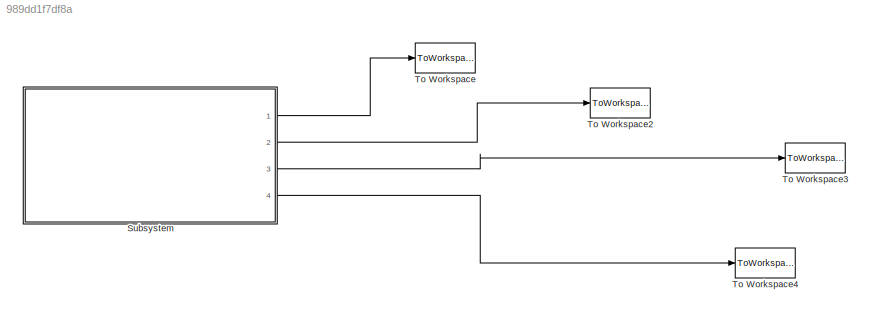
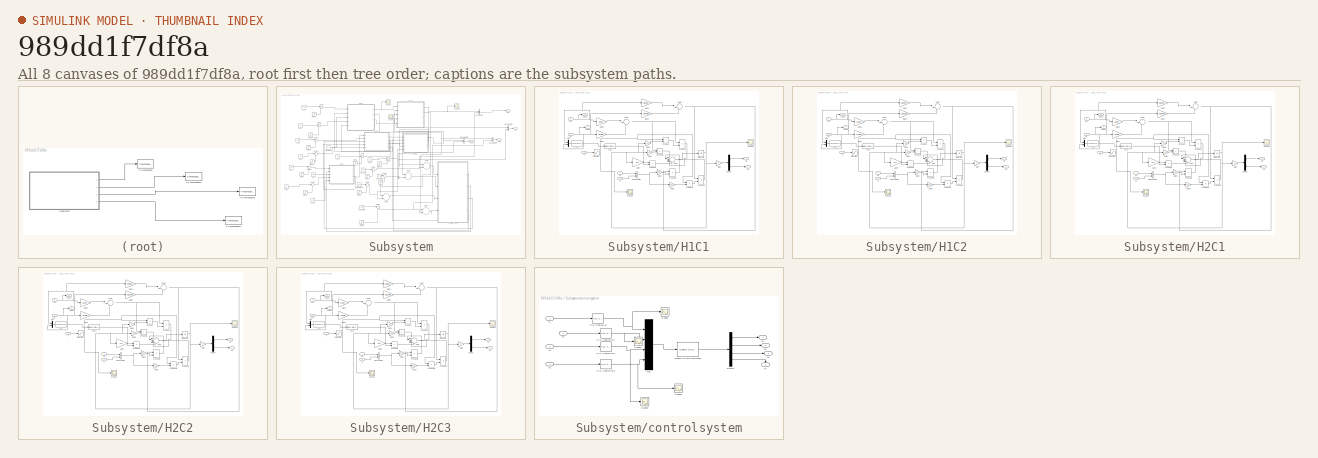
[diagram: thumbnail index - all 8 canvases of the model, root first then tree order]
MODEL slx_989dd1f7df8a
KIND model
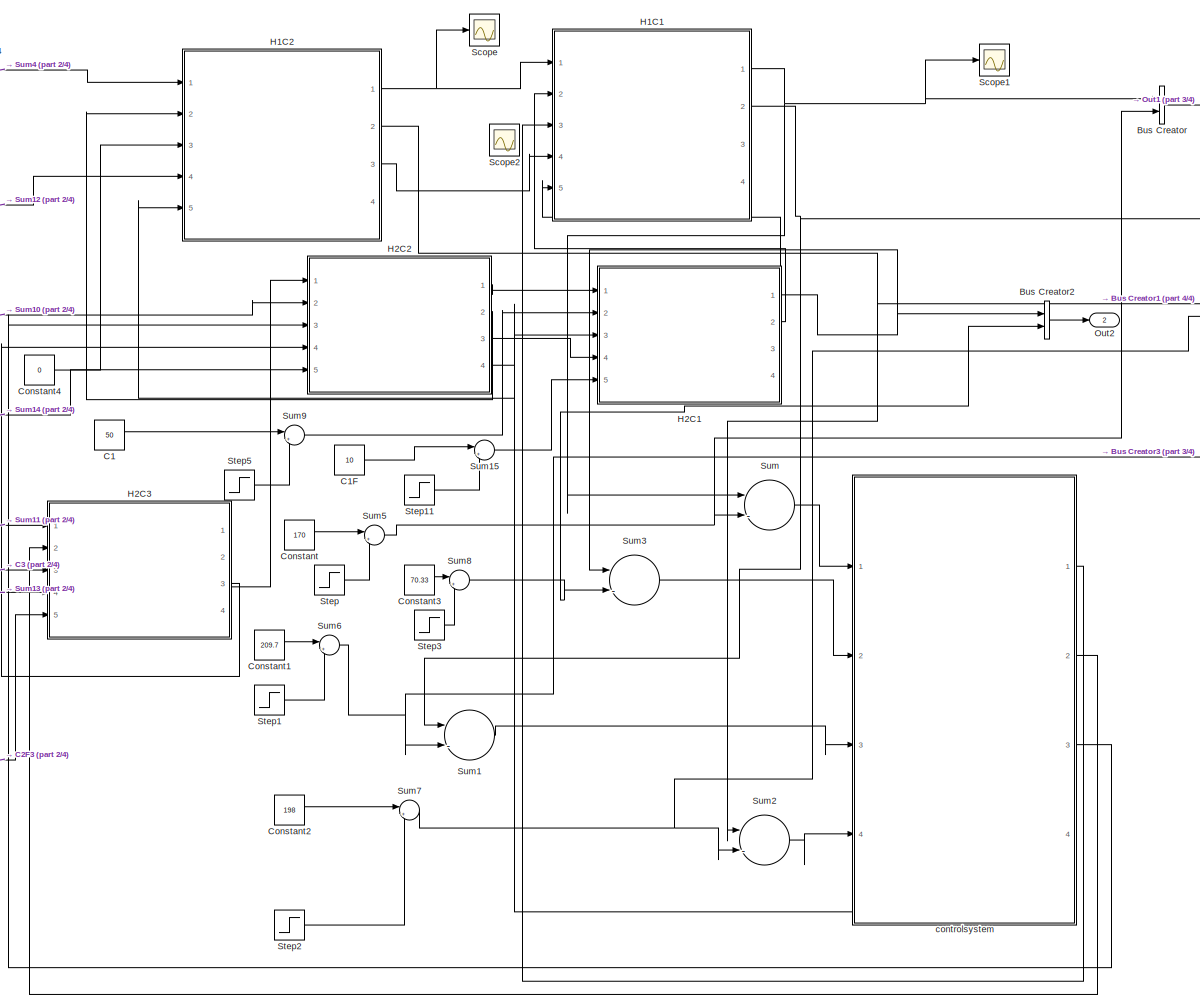
[diagram: Subsystem - part 1/4, center side, full height]
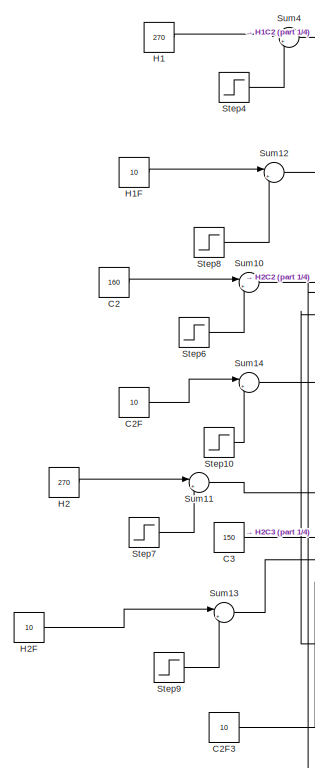
[diagram: Subsystem - part 2/4, left side, full height]
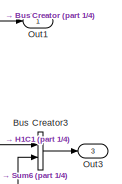
[diagram: Subsystem - part 3/4, top right region]
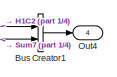
[diagram: Subsystem - part 4/4, top right region]
BLOCK [SubSystem] Subsystem
  Ports = [0, 4]
  RequestExecContextInheritance = off
BLOCK [BusCreator] Subsystem/Bus Creator
  DisplayOption = bar
  Inputs = 2
  Ports = [2, 1]
BLOCK [BusCreator] Subsystem/Bus Creator1
  DisplayOption = bar
  Inputs = 2
  Ports = [2, 1]
BLOCK [BusCreator] Subsystem/Bus Creator2
  DisplayOption = bar
  Inputs = 2
  Ports = [2, 1]
BLOCK [BusCreator] Subsystem/Bus Creator3
  DisplayOption = bar
  Inputs = 2
  Ports = [2, 1]
BLOCK [Constant] Subsystem/C1
  Value = 50
BLOCK [Constant] Subsystem/C1F
  Value = 10
BLOCK [Constant] Subsystem/C2
  Value = 160
BLOCK [Constant] Subsystem/C2F
  Value = 10
BLOCK [Constant] Subsystem/C2F3
  Value = 10
BLOCK [Constant] Subsystem/C3
  Value = 150
BLOCK [Constant] Subsystem/Constant
  Value = 170
BLOCK [Constant] Subsystem/Constant1
  Value = 209.7
BLOCK [Constant] Subsystem/Constant2
  Value = 198
BLOCK [Constant] Subsystem/Constant3
  Value = 70.33
BLOCK [Constant] Subsystem/Constant4
  Value = 0
BLOCK [Constant] Subsystem/H1
  Value = 270
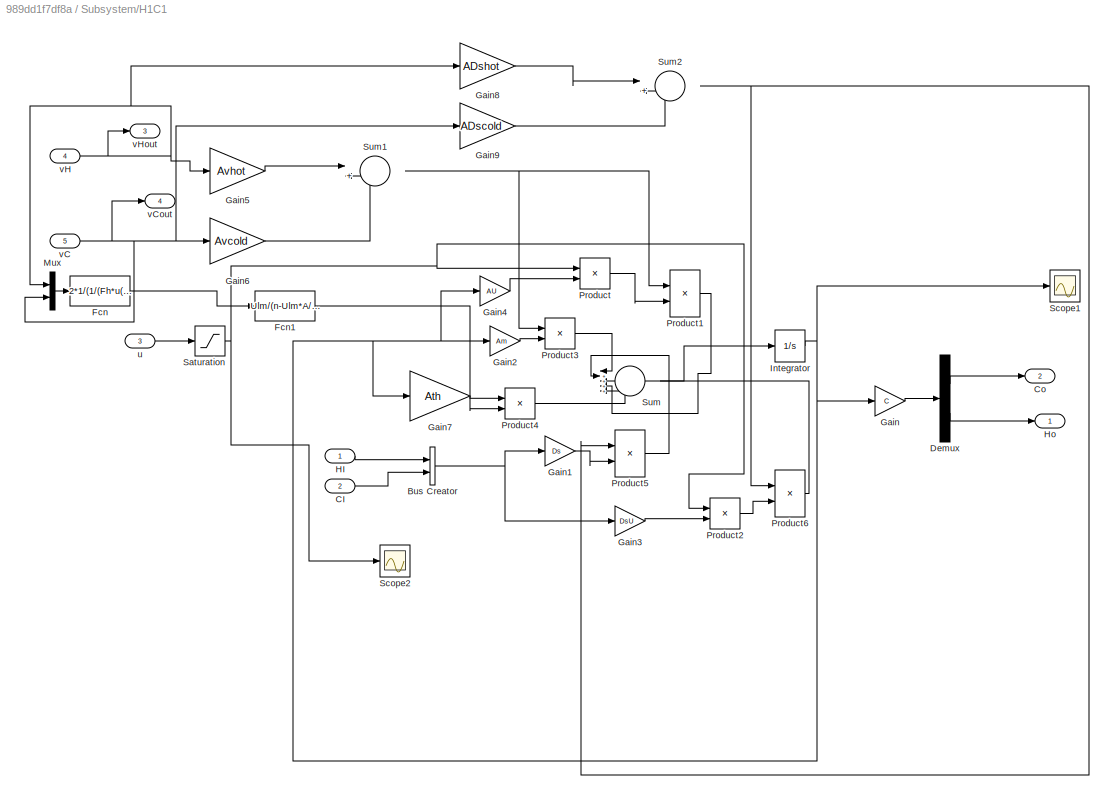
BLOCK [SubSystem] Subsystem/H1C1
  Ports = [5, 4]
  RequestExecContextInheritance = off
BLOCK [BusCreator] Subsystem/H1C1/Bus Creator
  DisplayOption = bar
  Inputs = 2
  Ports = [2, 1]
BLOCK [Inport] Subsystem/H1C1/CI
  IconDisplay = Port number
  Port = 2
BLOCK [Outport] Subsystem/H1C1/Co
  IconDisplay = Port number
  Port = 2
BLOCK [Demux] Subsystem/H1C1/Demux
  DisplayOption = bar
  Outputs = 2
  Ports = [1, 2]
BLOCK [Fcn] Subsystem/H1C1/Fcn
  Expr = 2*1/(1/(Fh*u(1))+1/(Fc*u(2)));
BLOCK [Fcn] Subsystem/H1C1/Fcn1
  Expr = Ulm/(n-Ulm*A/u)*n
BLOCK [Gain] Subsystem/H1C1/Gain
  Gain = C
  Multiplication = Matrix(K*u)
  OutDataTypeStr = Inherit: Inherit via internal rule
  ParamDataTypeStr = Inherit: Inherit via internal rule
  SaturateOnIntegerOverflow = off
BLOCK [Gain] Subsystem/H1C1/Gain1
  Gain = Ds
  Multiplication = Matrix(K*u)
  OutDataTypeStr = Inherit: Inherit via internal rule
  ParamDataTypeStr = Inherit: Inherit via internal rule
  SaturateOnIntegerOverflow = off
BLOCK [Gain] Subsystem/H1C1/Gain2
  Gain = Am
  Multiplication = Matrix(K*u)
  OutDataTypeStr = Inherit: Inherit via internal rule
  ParamDataTypeStr = Inherit: Inherit via internal rule
  SaturateOnIntegerOverflow = off
BLOCK [Gain] Subsystem/H1C1/Gain3
  Gain = DsU
  Multiplication = Matrix(K*u)
  OutDataTypeStr = Inherit: Inherit via internal rule
  ParamDataTypeStr = Inherit: Inherit via internal rule
  SaturateOnIntegerOverflow = off
BLOCK [Gain] Subsystem/H1C1/Gain4
  Gain = AU
  Multiplication = Matrix(K*u)
  OutDataTypeStr = Inherit: Inherit via internal rule
  ParamDataTypeStr = Inherit: Inherit via internal rule
  SaturateOnIntegerOverflow = off
BLOCK [Gain] Subsystem/H1C1/Gain5
  Gain = Avhot
  OutDataTypeStr = Inherit: Inherit via internal rule
  ParamDataTypeStr = Inherit: Inherit via internal rule
  SaturateOnIntegerOverflow = off
BLOCK [Gain] Subsystem/H1C1/Gain6
  Gain = Avcold
  OutDataTypeStr = Inherit: Inherit via internal rule
  ParamDataTypeStr = Inherit: Inherit via internal rule
  SaturateOnIntegerOverflow = off
BLOCK [Gain] Subsystem/H1C1/Gain7
  Gain = Ath
  Multiplication = Matrix(K*u)
  OutDataTypeStr = Inherit: Inherit via internal rule
  ParamDataTypeStr = Inherit: Inherit via internal rule
  SaturateOnIntegerOverflow = off
BLOCK [Gain] Subsystem/H1C1/Gain8
  Gain = ADshot
  OutDataTypeStr = Inherit: Inherit via internal rule
  ParamDataTypeStr = Inherit: Inherit via internal rule
  SaturateOnIntegerOverflow = off
BLOCK [Gain] Subsystem/H1C1/Gain9
  Gain = ADscold
  OutDataTypeStr = Inherit: Inherit via internal rule
  ParamDataTypeStr = Inherit: Inherit via internal rule
  SaturateOnIntegerOverflow = off
BLOCK [Inport] Subsystem/H1C1/HI
  IconDisplay = Port number
BLOCK [Outport] Subsystem/H1C1/Ho
  IconDisplay = Port number
BLOCK [Integrator] Subsystem/H1C1/Integrator
  InitialCondition = initT
  Ports = [1, 1]
BLOCK [Mux] Subsystem/H1C1/Mux
  DisplayOption = bar
  Inputs = 2
  Ports = [2, 1]
BLOCK [Product] Subsystem/H1C1/Product
  InputSameDT = off
  OutDataTypeStr = Inherit: Inherit via internal rule
  Ports = [2, 1]
  RndMeth = Floor
  SaturateOnIntegerOverflow = off
BLOCK [Product] Subsystem/H1C1/Product1
  InputSameDT = off
  Multiplication = Matrix(*)
  OutDataTypeStr = Inherit: Inherit via internal rule
  Ports = [2, 1]
  RndMeth = Floor
  SaturateOnIntegerOverflow = off
BLOCK [Product] Subsystem/H1C1/Product2
  InputSameDT = off
  OutDataTypeStr = Inherit: Inherit via internal rule
  Ports = [2, 1]
  RndMeth = Floor
  SaturateOnIntegerOverflow = off
BLOCK [Product] Subsystem/H1C1/Product3
  InputSameDT = off
  Multiplication = Matrix(*)
  OutDataTypeStr = Inherit: Inherit via internal rule
  Ports = [2, 1]
  RndMeth = Floor
  SaturateOnIntegerOverflow = off
BLOCK [Product] Subsystem/H1C1/Product4
  InputSameDT = off
  OutDataTypeStr = Inherit: Inherit via internal rule
  Ports = [2, 1]
  RndMeth = Floor
  SaturateOnIntegerOverflow = off
BLOCK [Product] Subsystem/H1C1/Product5
  InputSameDT = off
  Multiplication = Matrix(*)
  OutDataTypeStr = Inherit: Inherit via internal rule
  Ports = [2, 1]
  RndMeth = Floor
  SaturateOnIntegerOverflow = off
BLOCK [Product] Subsystem/H1C1/Product6
  InputSameDT = off
  Multiplication = Matrix(*)
  OutDataTypeStr = Inherit: Inherit via internal rule
  Ports = [2, 1]
  RndMeth = Floor
  SaturateOnIntegerOverflow = off
BLOCK [Saturate] Subsystem/H1C1/Saturation
  InputPortMap = u0
  LowerLimit = 0
  Ports = [1, 1]
  UpperLimit = 1
BLOCK [Scope] Subsystem/H1C1/Scope1
  Floating = off
  LegendLocations = 0.41857    -0.59079     0.44357      1.3788
  LimitDataPoints = off
  NumInputPorts = 1
  Ports = [1]
  SaveName = ScopeData4
  ShowLegends = on
  YMax = 220
  YMin = 60
BLOCK [Scope] Subsystem/H1C1/Scope2
  Floating = off
  NumInputPorts = 1
  Ports = [1]
  SaveName = ScopeData2
  ShowLegends = off
BLOCK [Sum] Subsystem/H1C1/Sum
  IconShape = round
  InputSameDT = off
  Inputs = |+++++
  OutDataTypeStr = Inherit: Inherit via internal rule
  Ports = [5, 1]
  SaturateOnIntegerOverflow = off
BLOCK [Sum] Subsystem/H1C1/Sum1
  IconShape = round
  InputSameDT = off
  Inputs = |++
  OutDataTypeStr = Inherit: Inherit via internal rule
  Ports = [2, 1]
  SaturateOnIntegerOverflow = off
BLOCK [Sum] Subsystem/H1C1/Sum2
  IconShape = round
  InputSameDT = off
  Inputs = |++
  OutDataTypeStr = Inherit: Inherit via internal rule
  Ports = [2, 1]
  SaturateOnIntegerOverflow = off
BLOCK [Inport] Subsystem/H1C1/u
  IconDisplay = Port number
  Port = 3
BLOCK [Inport] Subsystem/H1C1/vC
  IconDisplay = Port number
  Port = 5
BLOCK [Outport] Subsystem/H1C1/vCout
  IconDisplay = Port number
  Port = 4
BLOCK [Inport] Subsystem/H1C1/vH
  IconDisplay = Port number
  Port = 4
BLOCK [Outport] Subsystem/H1C1/vHout
  IconDisplay = Port number
  Port = 3
BLOCK [SubSystem] Subsystem/H1C2
  Ports = [5, 4]
  RequestExecContextInheritance = off
BLOCK [BusCreator] Subsystem/H1C2/Bus Creator
  DisplayOption = bar
  Inputs = 2
  Ports = [2, 1]
BLOCK [Inport] Subsystem/H1C2/CI
  IconDisplay = Port number
  Port = 2
BLOCK [Outport] Subsystem/H1C2/Co
  IconDisplay = Port number
  Port = 2
BLOCK [Demux] Subsystem/H1C2/Demux
  DisplayOption = bar
  Outputs = 2
  Ports = [1, 2]
BLOCK [Fcn] Subsystem/H1C2/Fcn
  Expr = 2*1/(1/(Fh*u(1))+1/(Fc*u(2)));
BLOCK [Fcn] Subsystem/H1C2/Fcn1
  Expr = Ulm/(n-Ulm*A/u)*n
BLOCK [Gain] Subsystem/H1C2/Gain
  Gain = C
  Multiplication = Matrix(K*u)
  OutDataTypeStr = Inherit: Inherit via internal rule
  ParamDataTypeStr = Inherit: Inherit via internal rule
  SaturateOnIntegerOverflow = off
BLOCK [Gain] Subsystem/H1C2/Gain1
  Gain = Ds
  Multiplication = Matrix(K*u)
  OutDataTypeStr = Inherit: Inherit via internal rule
  ParamDataTypeStr = Inherit: Inherit via internal rule
  SaturateOnIntegerOverflow = off
BLOCK [Gain] Subsystem/H1C2/Gain2
  Gain = Am
  Multiplication = Matrix(K*u)
  OutDataTypeStr = Inherit: Inherit via internal rule
  ParamDataTypeStr = Inherit: Inherit via internal rule
  SaturateOnIntegerOverflow = off
BLOCK [Gain] Subsystem/H1C2/Gain3
  Gain = DsU
  Multiplication = Matrix(K*u)
  OutDataTypeStr = Inherit: Inherit via internal rule
  ParamDataTypeStr = Inherit: Inherit via internal rule
  SaturateOnIntegerOverflow = off
BLOCK [Gain] Subsystem/H1C2/Gain4
  Gain = AU
  Multiplication = Matrix(K*u)
  OutDataTypeStr = Inherit: Inherit via internal rule
  ParamDataTypeStr = Inherit: Inherit via internal rule
  SaturateOnIntegerOverflow = off
BLOCK [Gain] Subsystem/H1C2/Gain5
  Gain = Avhot
  OutDataTypeStr = Inherit: Inherit via internal rule
  ParamDataTypeStr = Inherit: Inherit via internal rule
  SaturateOnIntegerOverflow = off
BLOCK [Gain] Subsystem/H1C2/Gain6
  Gain = Avcold
  OutDataTypeStr = Inherit: Inherit via internal rule
  ParamDataTypeStr = Inherit: Inherit via internal rule
  SaturateOnIntegerOverflow = off
BLOCK [Gain] Subsystem/H1C2/Gain7
  Gain = Ath
  Multiplication = Matrix(K*u)
  OutDataTypeStr = Inherit: Inherit via internal rule
  ParamDataTypeStr = Inherit: Inherit via internal rule
  SaturateOnIntegerOverflow = off
BLOCK [Gain] Subsystem/H1C2/Gain8
  Gain = ADshot
  OutDataTypeStr = Inherit: Inherit via internal rule
  ParamDataTypeStr = Inherit: Inherit via internal rule
  SaturateOnIntegerOverflow = off
BLOCK [Gain] Subsystem/H1C2/Gain9
  Gain = ADscold
  OutDataTypeStr = Inherit: Inherit via internal rule
  ParamDataTypeStr = Inherit: Inherit via internal rule
  SaturateOnIntegerOverflow = off
BLOCK [Inport] Subsystem/H1C2/HI
  IconDisplay = Port number
BLOCK [Outport] Subsystem/H1C2/Ho
  IconDisplay = Port number
BLOCK [Integrator] Subsystem/H1C2/Integrator
  InitialCondition = initT
  Ports = [1, 1]
BLOCK [Mux] Subsystem/H1C2/Mux
  DisplayOption = bar
  Inputs = 2
  Ports = [2, 1]
BLOCK [Product] Subsystem/H1C2/Product
  InputSameDT = off
  OutDataTypeStr = Inherit: Inherit via internal rule
  Ports = [2, 1]
  RndMeth = Floor
  SaturateOnIntegerOverflow = off
BLOCK [Product] Subsystem/H1C2/Product1
  InputSameDT = off
  Multiplication = Matrix(*)
  OutDataTypeStr = Inherit: Inherit via internal rule
  Ports = [2, 1]
  RndMeth = Floor
  SaturateOnIntegerOverflow = off
BLOCK [Product] Subsystem/H1C2/Product2
  InputSameDT = off
  OutDataTypeStr = Inherit: Inherit via internal rule
  Ports = [2, 1]
  RndMeth = Floor
  SaturateOnIntegerOverflow = off
BLOCK [Product] Subsystem/H1C2/Product3
  InputSameDT = off
  Multiplication = Matrix(*)
  OutDataTypeStr = Inherit: Inherit via internal rule
  Ports = [2, 1]
  RndMeth = Floor
  SaturateOnIntegerOverflow = off
BLOCK [Product] Subsystem/H1C2/Product4
  InputSameDT = off
  OutDataTypeStr = Inherit: Inherit via internal rule
  Ports = [2, 1]
  RndMeth = Floor
  SaturateOnIntegerOverflow = off
BLOCK [Product] Subsystem/H1C2/Product5
  InputSameDT = off
  Multiplication = Matrix(*)
  OutDataTypeStr = Inherit: Inherit via internal rule
  Ports = [2, 1]
  RndMeth = Floor
  SaturateOnIntegerOverflow = off
BLOCK [Product] Subsystem/H1C2/Product6
  InputSameDT = off
  Multiplication = Matrix(*)
  OutDataTypeStr = Inherit: Inherit via internal rule
  Ports = [2, 1]
  RndMeth = Floor
  SaturateOnIntegerOverflow = off
BLOCK [Saturate] Subsystem/H1C2/Saturation
  InputPortMap = u0
  LowerLimit = 0
  Ports = [1, 1]
  UpperLimit = 1
BLOCK [Scope] Subsystem/H1C2/Scope1
  Floating = off
  LegendLocations = 0.41857    -0.59079     0.44357      1.3788
  LimitDataPoints = off
  NumInputPorts = 1
  Ports = [1]
  SaveName = ScopeData4
  ShowLegends = on
  YMax = 220
  YMin = 60
BLOCK [Scope] Subsystem/H1C2/Scope2
  Floating = off
  NumInputPorts = 1
  Ports = [1]
  SaveName = ScopeData2
  ShowLegends = off
BLOCK [Sum] Subsystem/H1C2/Sum
  IconShape = round
  InputSameDT = off
  Inputs = |+++++
  OutDataTypeStr = Inherit: Inherit via internal rule
  Ports = [5, 1]
  SaturateOnIntegerOverflow = off
BLOCK [Sum] Subsystem/H1C2/Sum1
  IconShape = round
  InputSameDT = off
  Inputs = |++
  OutDataTypeStr = Inherit: Inherit via internal rule
  Ports = [2, 1]
  SaturateOnIntegerOverflow = off
BLOCK [Sum] Subsystem/H1C2/Sum2
  IconShape = round
  InputSameDT = off
  Inputs = |++
  OutDataTypeStr = Inherit: Inherit via internal rule
  Ports = [2, 1]
  SaturateOnIntegerOverflow = off
BLOCK [Inport] Subsystem/H1C2/u
  IconDisplay = Port number
  Port = 3
BLOCK [Inport] Subsystem/H1C2/vC
  IconDisplay = Port number
  Port = 5
BLOCK [Outport] Subsystem/H1C2/vCout
  IconDisplay = Port number
  Port = 4
BLOCK [Inport] Subsystem/H1C2/vH
  IconDisplay = Port number
  Port = 4
BLOCK [Outport] Subsystem/H1C2/vHout
  IconDisplay = Port number
  Port = 3
BLOCK [Constant] Subsystem/H1F
  Value = 10
BLOCK [Constant] Subsystem/H2
  Value = 270
BLOCK [SubSystem] Subsystem/H2C1
  Ports = [5, 4]
  RequestExecContextInheritance = off
BLOCK [BusCreator] Subsystem/H2C1/Bus Creator
  DisplayOption = bar
  Inputs = 2
  Ports = [2, 1]
BLOCK [Inport] Subsystem/H2C1/CI
  IconDisplay = Port number
  Port = 2
BLOCK [Outport] Subsystem/H2C1/Co
  IconDisplay = Port number
  Port = 2
BLOCK [Demux] Subsystem/H2C1/Demux
  DisplayOption = bar
  Outputs = 2
  Ports = [1, 2]
BLOCK [Fcn] Subsystem/H2C1/Fcn
  Expr = 2*1/(1/(Fh*u(1))+1/(Fc*u(2)));
BLOCK [Fcn] Subsystem/H2C1/Fcn1
  Expr = Ulm/(n-Ulm*A/u)*n
BLOCK [Gain] Subsystem/H2C1/Gain
  Gain = C
  Multiplication = Matrix(K*u)
  OutDataTypeStr = Inherit: Inherit via internal rule
  ParamDataTypeStr = Inherit: Inherit via internal rule
  SaturateOnIntegerOverflow = off
BLOCK [Gain] Subsystem/H2C1/Gain1
  Gain = Ds
  Multiplication = Matrix(K*u)
  OutDataTypeStr = Inherit: Inherit via internal rule
  ParamDataTypeStr = Inherit: Inherit via internal rule
  SaturateOnIntegerOverflow = off
BLOCK [Gain] Subsystem/H2C1/Gain2
  Gain = Am
  Multiplication = Matrix(K*u)
  OutDataTypeStr = Inherit: Inherit via internal rule
  ParamDataTypeStr = Inherit: Inherit via internal rule
  SaturateOnIntegerOverflow = off
BLOCK [Gain] Subsystem/H2C1/Gain3
  Gain = DsU
  Multiplication = Matrix(K*u)
  OutDataTypeStr = Inherit: Inherit via internal rule
  ParamDataTypeStr = Inherit: Inherit via internal rule
  SaturateOnIntegerOverflow = off
BLOCK [Gain] Subsystem/H2C1/Gain4
  Gain = AU
  Multiplication = Matrix(K*u)
  OutDataTypeStr = Inherit: Inherit via internal rule
  ParamDataTypeStr = Inherit: Inherit via internal rule
  SaturateOnIntegerOverflow = off
BLOCK [Gain] Subsystem/H2C1/Gain5
  Gain = Avhot
  OutDataTypeStr = Inherit: Inherit via internal rule
  ParamDataTypeStr = Inherit: Inherit via internal rule
  SaturateOnIntegerOverflow = off
BLOCK [Gain] Subsystem/H2C1/Gain6
  Gain = Avcold
  OutDataTypeStr = Inherit: Inherit via internal rule
  ParamDataTypeStr = Inherit: Inherit via internal rule
  SaturateOnIntegerOverflow = off
BLOCK [Gain] Subsystem/H2C1/Gain7
  Gain = Ath
  Multiplication = Matrix(K*u)
  OutDataTypeStr = Inherit: Inherit via internal rule
  ParamDataTypeStr = Inherit: Inherit via internal rule
  SaturateOnIntegerOverflow = off
BLOCK [Gain] Subsystem/H2C1/Gain8
  Gain = ADshot
  OutDataTypeStr = Inherit: Inherit via internal rule
  ParamDataTypeStr = Inherit: Inherit via internal rule
  SaturateOnIntegerOverflow = off
BLOCK [Gain] Subsystem/H2C1/Gain9
  Gain = ADscold
  OutDataTypeStr = Inherit: Inherit via internal rule
  ParamDataTypeStr = Inherit: Inherit via internal rule
  SaturateOnIntegerOverflow = off
BLOCK [Inport] Subsystem/H2C1/HI
  IconDisplay = Port number
BLOCK [Outport] Subsystem/H2C1/Ho
  IconDisplay = Port number
BLOCK [Integrator] Subsystem/H2C1/Integrator
  InitialCondition = initT
  Ports = [1, 1]
BLOCK [Mux] Subsystem/H2C1/Mux
  DisplayOption = bar
  Inputs = 2
  Ports = [2, 1]
BLOCK [Product] Subsystem/H2C1/Product
  InputSameDT = off
  OutDataTypeStr = Inherit: Inherit via internal rule
  Ports = [2, 1]
  RndMeth = Floor
  SaturateOnIntegerOverflow = off
BLOCK [Product] Subsystem/H2C1/Product1
  InputSameDT = off
  Multiplication = Matrix(*)
  OutDataTypeStr = Inherit: Inherit via internal rule
  Ports = [2, 1]
  RndMeth = Floor
  SaturateOnIntegerOverflow = off
BLOCK [Product] Subsystem/H2C1/Product2
  InputSameDT = off
  OutDataTypeStr = Inherit: Inherit via internal rule
  Ports = [2, 1]
  RndMeth = Floor
  SaturateOnIntegerOverflow = off
BLOCK [Product] Subsystem/H2C1/Product3
  InputSameDT = off
  Multiplication = Matrix(*)
  OutDataTypeStr = Inherit: Inherit via internal rule
  Ports = [2, 1]
  RndMeth = Floor
  SaturateOnIntegerOverflow = off
BLOCK [Product] Subsystem/H2C1/Product4
  InputSameDT = off
  OutDataTypeStr = Inherit: Inherit via internal rule
  Ports = [2, 1]
  RndMeth = Floor
  SaturateOnIntegerOverflow = off
BLOCK [Product] Subsystem/H2C1/Product5
  InputSameDT = off
  Multiplication = Matrix(*)
  OutDataTypeStr = Inherit: Inherit via internal rule
  Ports = [2, 1]
  RndMeth = Floor
  SaturateOnIntegerOverflow = off
BLOCK [Product] Subsystem/H2C1/Product6
  InputSameDT = off
  Multiplication = Matrix(*)
  OutDataTypeStr = Inherit: Inherit via internal rule
  Ports = [2, 1]
  RndMeth = Floor
  SaturateOnIntegerOverflow = off
BLOCK [Saturate] Subsystem/H2C1/Saturation
  InputPortMap = u0
  LowerLimit = 0
  Ports = [1, 1]
  UpperLimit = 1
BLOCK [Scope] Subsystem/H2C1/Scope1
  Floating = off
  LegendLocations = 0.41857    -0.59079     0.44357      1.3788
  LimitDataPoints = off
  NumInputPorts = 1
  Ports = [1]
  SaveName = ScopeData4
  ShowLegends = on
  YMax = 220
  YMin = 60
BLOCK [Scope] Subsystem/H2C1/Scope2
  Floating = off
  NumInputPorts = 1
  Ports = [1]
  SaveName = ScopeData2
  ShowLegends = off
BLOCK [Sum] Subsystem/H2C1/Sum
  IconShape = round
  InputSameDT = off
  Inputs = |+++++
  OutDataTypeStr = Inherit: Inherit via internal rule
  Ports = [5, 1]
  SaturateOnIntegerOverflow = off
BLOCK [Sum] Subsystem/H2C1/Sum1
  IconShape = round
  InputSameDT = off
  Inputs = |++
  OutDataTypeStr = Inherit: Inherit via internal rule
  Ports = [2, 1]
  SaturateOnIntegerOverflow = off
BLOCK [Sum] Subsystem/H2C1/Sum2
  IconShape = round
  InputSameDT = off
  Inputs = |++
  OutDataTypeStr = Inherit: Inherit via internal rule
  Ports = [2, 1]
  SaturateOnIntegerOverflow = off
BLOCK [Inport] Subsystem/H2C1/u
  IconDisplay = Port number
  Port = 3
BLOCK [Inport] Subsystem/H2C1/vC
  IconDisplay = Port number
  Port = 5
BLOCK [Outport] Subsystem/H2C1/vCout
  IconDisplay = Port number
  Port = 4
BLOCK [Inport] Subsystem/H2C1/vH
  IconDisplay = Port number
  Port = 4
BLOCK [Outport] Subsystem/H2C1/vHout
  IconDisplay = Port number
  Port = 3
BLOCK [SubSystem] Subsystem/H2C2
  Ports = [5, 4]
  RequestExecContextInheritance = off
BLOCK [BusCreator] Subsystem/H2C2/Bus Creator
  DisplayOption = bar
  Inputs = 2
  Ports = [2, 1]
BLOCK [Inport] Subsystem/H2C2/CI
  IconDisplay = Port number
  Port = 2
BLOCK [Outport] Subsystem/H2C2/Co
  IconDisplay = Port number
  Port = 2
BLOCK [Demux] Subsystem/H2C2/Demux
  DisplayOption = bar
  Outputs = 2
  Ports = [1, 2]
BLOCK [Fcn] Subsystem/H2C2/Fcn
  Expr = 2*1/(1/(Fh*u(1))+1/(Fc*u(2)));
BLOCK [Fcn] Subsystem/H2C2/Fcn1
  Expr = Ulm/(n-Ulm*A/u)*n
BLOCK [Gain] Subsystem/H2C2/Gain
  Gain = C
  Multiplication = Matrix(K*u)
  OutDataTypeStr = Inherit: Inherit via internal rule
  ParamDataTypeStr = Inherit: Inherit via internal rule
  SaturateOnIntegerOverflow = off
BLOCK [Gain] Subsystem/H2C2/Gain1
  Gain = Ds
  Multiplication = Matrix(K*u)
  OutDataTypeStr = Inherit: Inherit via internal rule
  ParamDataTypeStr = Inherit: Inherit via internal rule
  SaturateOnIntegerOverflow = off
BLOCK [Gain] Subsystem/H2C2/Gain2
  Gain = Am
  Multiplication = Matrix(K*u)
  OutDataTypeStr = Inherit: Inherit via internal rule
  ParamDataTypeStr = Inherit: Inherit via internal rule
  SaturateOnIntegerOverflow = off
BLOCK [Gain] Subsystem/H2C2/Gain3
  Gain = DsU
  Multiplication = Matrix(K*u)
  OutDataTypeStr = Inherit: Inherit via internal rule
  ParamDataTypeStr = Inherit: Inherit via internal rule
  SaturateOnIntegerOverflow = off
BLOCK [Gain] Subsystem/H2C2/Gain4
  Gain = AU
  Multiplication = Matrix(K*u)
  OutDataTypeStr = Inherit: Inherit via internal rule
  ParamDataTypeStr = Inherit: Inherit via internal rule
  SaturateOnIntegerOverflow = off
BLOCK [Gain] Subsystem/H2C2/Gain5
  Gain = Avhot
  OutDataTypeStr = Inherit: Inherit via internal rule
  ParamDataTypeStr = Inherit: Inherit via internal rule
  SaturateOnIntegerOverflow = off
BLOCK [Gain] Subsystem/H2C2/Gain6
  Gain = Avcold
  OutDataTypeStr = Inherit: Inherit via internal rule
  ParamDataTypeStr = Inherit: Inherit via internal rule
  SaturateOnIntegerOverflow = off
BLOCK [Gain] Subsystem/H2C2/Gain7
  Gain = Ath
  Multiplication = Matrix(K*u)
  OutDataTypeStr = Inherit: Inherit via internal rule
  ParamDataTypeStr = Inherit: Inherit via internal rule
  SaturateOnIntegerOverflow = off
BLOCK [Gain] Subsystem/H2C2/Gain8
  Gain = ADshot
  OutDataTypeStr = Inherit: Inherit via internal rule
  ParamDataTypeStr = Inherit: Inherit via internal rule
  SaturateOnIntegerOverflow = off
BLOCK [Gain] Subsystem/H2C2/Gain9
  Gain = ADscold
  OutDataTypeStr = Inherit: Inherit via internal rule
  ParamDataTypeStr = Inherit: Inherit via internal rule
  SaturateOnIntegerOverflow = off
BLOCK [Inport] Subsystem/H2C2/HI
  IconDisplay = Port number
BLOCK [Outport] Subsystem/H2C2/Ho
  IconDisplay = Port number
BLOCK [Integrator] Subsystem/H2C2/Integrator
  InitialCondition = initT
  Ports = [1, 1]
BLOCK [Mux] Subsystem/H2C2/Mux
  DisplayOption = bar
  Inputs = 2
  Ports = [2, 1]
BLOCK [Product] Subsystem/H2C2/Product
  InputSameDT = off
  OutDataTypeStr = Inherit: Inherit via internal rule
  Ports = [2, 1]
  RndMeth = Floor
  SaturateOnIntegerOverflow = off
BLOCK [Product] Subsystem/H2C2/Product1
  InputSameDT = off
  Multiplication = Matrix(*)
  OutDataTypeStr = Inherit: Inherit via internal rule
  Ports = [2, 1]
  RndMeth = Floor
  SaturateOnIntegerOverflow = off
BLOCK [Product] Subsystem/H2C2/Product2
  InputSameDT = off
  OutDataTypeStr = Inherit: Inherit via internal rule
  Ports = [2, 1]
  RndMeth = Floor
  SaturateOnIntegerOverflow = off
BLOCK [Product] Subsystem/H2C2/Product3
  InputSameDT = off
  Multiplication = Matrix(*)
  OutDataTypeStr = Inherit: Inherit via internal rule
  Ports = [2, 1]
  RndMeth = Floor
  SaturateOnIntegerOverflow = off
BLOCK [Product] Subsystem/H2C2/Product4
  InputSameDT = off
  OutDataTypeStr = Inherit: Inherit via internal rule
  Ports = [2, 1]
  RndMeth = Floor
  SaturateOnIntegerOverflow = off
BLOCK [Product] Subsystem/H2C2/Product5
  InputSameDT = off
  Multiplication = Matrix(*)
  OutDataTypeStr = Inherit: Inherit via internal rule
  Ports = [2, 1]
  RndMeth = Floor
  SaturateOnIntegerOverflow = off
BLOCK [Product] Subsystem/H2C2/Product6
  InputSameDT = off
  Multiplication = Matrix(*)
  OutDataTypeStr = Inherit: Inherit via internal rule
  Ports = [2, 1]
  RndMeth = Floor
  SaturateOnIntegerOverflow = off
BLOCK [Saturate] Subsystem/H2C2/Saturation
  InputPortMap = u0
  LowerLimit = 0
  Ports = [1, 1]
  UpperLimit = 1
BLOCK [Scope] Subsystem/H2C2/Scope1
  Floating = off
  LegendLocations = 0.41857    -0.59079     0.44357      1.3788
  LimitDataPoints = off
  NumInputPorts = 1
  Ports = [1]
  SaveName = ScopeData4
  ShowLegends = on
  YMax = 220
  YMin = 60
BLOCK [Scope] Subsystem/H2C2/Scope2
  Floating = off
  NumInputPorts = 1
  Ports = [1]
  SaveName = ScopeData2
  ShowLegends = off
BLOCK [Sum] Subsystem/H2C2/Sum
  IconShape = round
  InputSameDT = off
  Inputs = |+++++
  OutDataTypeStr = Inherit: Inherit via internal rule
  Ports = [5, 1]
  SaturateOnIntegerOverflow = off
BLOCK [Sum] Subsystem/H2C2/Sum1
  IconShape = round
  InputSameDT = off
  Inputs = |++
  OutDataTypeStr = Inherit: Inherit via internal rule
  Ports = [2, 1]
  SaturateOnIntegerOverflow = off
BLOCK [Sum] Subsystem/H2C2/Sum2
  IconShape = round
  InputSameDT = off
  Inputs = |++
  OutDataTypeStr = Inherit: Inherit via internal rule
  Ports = [2, 1]
  SaturateOnIntegerOverflow = off
BLOCK [Inport] Subsystem/H2C2/u
  IconDisplay = Port number
  Port = 3
BLOCK [Inport] Subsystem/H2C2/vC
  IconDisplay = Port number
  Port = 5
BLOCK [Outport] Subsystem/H2C2/vCout
  IconDisplay = Port number
  Port = 4
BLOCK [Inport] Subsystem/H2C2/vH
  IconDisplay = Port number
  Port = 4
BLOCK [Outport] Subsystem/H2C2/vHout
  IconDisplay = Port number
  Port = 3
BLOCK [SubSystem] Subsystem/H2C3
  Ports = [5, 4]
  RequestExecContextInheritance = off
BLOCK [BusCreator] Subsystem/H2C3/Bus Creator
  DisplayOption = bar
  Inputs = 2
  Ports = [2, 1]
BLOCK [Inport] Subsystem/H2C3/CI
  IconDisplay = Port number
  Port = 2
BLOCK [Outport] Subsystem/H2C3/Co
  IconDisplay = Port number
  Port = 2
BLOCK [Demux] Subsystem/H2C3/Demux
  DisplayOption = bar
  Outputs = 2
  Ports = [1, 2]
BLOCK [Fcn] Subsystem/H2C3/Fcn
  Expr = 2*1/(1/(Fh*u(1))+1/(Fc*u(2)));
BLOCK [Fcn] Subsystem/H2C3/Fcn1
  Expr = Ulm/(n-Ulm*A/u)*n
BLOCK [Gain] Subsystem/H2C3/Gain
  Gain = C
  Multiplication = Matrix(K*u)
  OutDataTypeStr = Inherit: Inherit via internal rule
  ParamDataTypeStr = Inherit: Inherit via internal rule
  SaturateOnIntegerOverflow = off
BLOCK [Gain] Subsystem/H2C3/Gain1
  Gain = Ds
  Multiplication = Matrix(K*u)
  OutDataTypeStr = Inherit: Inherit via internal rule
  ParamDataTypeStr = Inherit: Inherit via internal rule
  SaturateOnIntegerOverflow = off
BLOCK [Gain] Subsystem/H2C3/Gain2
  Gain = Am
  Multiplication = Matrix(K*u)
  OutDataTypeStr = Inherit: Inherit via internal rule
  ParamDataTypeStr = Inherit: Inherit via internal rule
  SaturateOnIntegerOverflow = off
BLOCK [Gain] Subsystem/H2C3/Gain3
  Gain = DsU
  Multiplication = Matrix(K*u)
  OutDataTypeStr = Inherit: Inherit via internal rule
  ParamDataTypeStr = Inherit: Inherit via internal rule
  SaturateOnIntegerOverflow = off
BLOCK [Gain] Subsystem/H2C3/Gain4
  Gain = AU
  Multiplication = Matrix(K*u)
  OutDataTypeStr = Inherit: Inherit via internal rule
  ParamDataTypeStr = Inherit: Inherit via internal rule
  SaturateOnIntegerOverflow = off
BLOCK [Gain] Subsystem/H2C3/Gain5
  Gain = Avhot
  OutDataTypeStr = Inherit: Inherit via internal rule
  ParamDataTypeStr = Inherit: Inherit via internal rule
  SaturateOnIntegerOverflow = off
BLOCK [Gain] Subsystem/H2C3/Gain6
  Gain = Avcold
  OutDataTypeStr = Inherit: Inherit via internal rule
  ParamDataTypeStr = Inherit: Inherit via internal rule
  SaturateOnIntegerOverflow = off
BLOCK [Gain] Subsystem/H2C3/Gain7
  Gain = Ath
  Multiplication = Matrix(K*u)
  OutDataTypeStr = Inherit: Inherit via internal rule
  ParamDataTypeStr = Inherit: Inherit via internal rule
  SaturateOnIntegerOverflow = off
BLOCK [Gain] Subsystem/H2C3/Gain8
  Gain = ADshot
  OutDataTypeStr = Inherit: Inherit via internal rule
  ParamDataTypeStr = Inherit: Inherit via internal rule
  SaturateOnIntegerOverflow = off
BLOCK [Gain] Subsystem/H2C3/Gain9
  Gain = ADscold
  OutDataTypeStr = Inherit: Inherit via internal rule
  ParamDataTypeStr = Inherit: Inherit via internal rule
  SaturateOnIntegerOverflow = off
BLOCK [Inport] Subsystem/H2C3/HI
  IconDisplay = Port number
BLOCK [Outport] Subsystem/H2C3/Ho
  IconDisplay = Port number
BLOCK [Integrator] Subsystem/H2C3/Integrator
  InitialCondition = initT
  Ports = [1, 1]
BLOCK [Mux] Subsystem/H2C3/Mux
  DisplayOption = bar
  Inputs = 2
  Ports = [2, 1]
BLOCK [Product] Subsystem/H2C3/Product
  InputSameDT = off
  OutDataTypeStr = Inherit: Inherit via internal rule
  Ports = [2, 1]
  RndMeth = Floor
  SaturateOnIntegerOverflow = off
BLOCK [Product] Subsystem/H2C3/Product1
  InputSameDT = off
  Multiplication = Matrix(*)
  OutDataTypeStr = Inherit: Inherit via internal rule
  Ports = [2, 1]
  RndMeth = Floor
  SaturateOnIntegerOverflow = off
BLOCK [Product] Subsystem/H2C3/Product2
  InputSameDT = off
  OutDataTypeStr = Inherit: Inherit via internal rule
  Ports = [2, 1]
  RndMeth = Floor
  SaturateOnIntegerOverflow = off
BLOCK [Product] Subsystem/H2C3/Product3
  InputSameDT = off
  Multiplication = Matrix(*)
  OutDataTypeStr = Inherit: Inherit via internal rule
  Ports = [2, 1]
  RndMeth = Floor
  SaturateOnIntegerOverflow = off
BLOCK [Product] Subsystem/H2C3/Product4
  InputSameDT = off
  OutDataTypeStr = Inherit: Inherit via internal rule
  Ports = [2, 1]
  RndMeth = Floor
  SaturateOnIntegerOverflow = off
BLOCK [Product] Subsystem/H2C3/Product5
  InputSameDT = off
  Multiplication = Matrix(*)
  OutDataTypeStr = Inherit: Inherit via internal rule
  Ports = [2, 1]
  RndMeth = Floor
  SaturateOnIntegerOverflow = off
BLOCK [Product] Subsystem/H2C3/Product6
  InputSameDT = off
  Multiplication = Matrix(*)
  OutDataTypeStr = Inherit: Inherit via internal rule
  Ports = [2, 1]
  RndMeth = Floor
  SaturateOnIntegerOverflow = off
BLOCK [Saturate] Subsystem/H2C3/Saturation
  InputPortMap = u0
  LowerLimit = 0
  Ports = [1, 1]
  UpperLimit = 1
BLOCK [Scope] Subsystem/H2C3/Scope1
  Floating = off
  LegendLocations = 0.41857    -0.59079     0.44357      1.3788
  LimitDataPoints = off
  NumInputPorts = 1
  Ports = [1]
  SaveName = ScopeData4
  ShowLegends = on
  YMax = 220
  YMin = 60
BLOCK [Scope] Subsystem/H2C3/Scope2
  Floating = off
  NumInputPorts = 1
  Ports = [1]
  SaveName = ScopeData2
  ShowLegends = off
BLOCK [Sum] Subsystem/H2C3/Sum
  IconShape = round
  InputSameDT = off
  Inputs = |+++++
  OutDataTypeStr = Inherit: Inherit via internal rule
  Ports = [5, 1]
  SaturateOnIntegerOverflow = off
BLOCK [Sum] Subsystem/H2C3/Sum1
  IconShape = round
  InputSameDT = off
  Inputs = |++
  OutDataTypeStr = Inherit: Inherit via internal rule
  Ports = [2, 1]
  SaturateOnIntegerOverflow = off
BLOCK [Sum] Subsystem/H2C3/Sum2
  IconShape = round
  InputSameDT = off
  Inputs = |++
  OutDataTypeStr = Inherit: Inherit via internal rule
  Ports = [2, 1]
  SaturateOnIntegerOverflow = off
BLOCK [Inport] Subsystem/H2C3/u
  IconDisplay = Port number
  Port = 3
BLOCK [Inport] Subsystem/H2C3/vC
  IconDisplay = Port number
  Port = 5
BLOCK [Outport] Subsystem/H2C3/vCout
  IconDisplay = Port number
  Port = 4
BLOCK [Inport] Subsystem/H2C3/vH
  IconDisplay = Port number
  Port = 4
BLOCK [Outport] Subsystem/H2C3/vHout
  IconDisplay = Port number
  Port = 3
BLOCK [Constant] Subsystem/H2F
  Value = 10
BLOCK [Outport] Subsystem/Out1
  IconDisplay = Port number
BLOCK [Outport] Subsystem/Out2
  IconDisplay = Port number
  Port = 2
BLOCK [Outport] Subsystem/Out3
  IconDisplay = Port number
  Port = 3
BLOCK [Outport] Subsystem/Out4
  IconDisplay = Port number
  Port = 4
BLOCK [Scope] Subsystem/Scope
  Floating = off
  LimitDataPoints = off
  NumInputPorts = 1
  Ports = [1]
  SaveName = ScopeData10
  ShowLegends = off
  ZoomMode = yonly
BLOCK [Scope] Subsystem/Scope1
  Floating = off
  LimitDataPoints = off
  NumInputPorts = 1
  Ports = [1]
  SaveName = ScopeData11
  ShowLegends = off
  ZoomMode = yonly
BLOCK [Scope] Subsystem/Scope2
  Floating = off
  LimitDataPoints = off
  NumInputPorts = 1
  Ports = [1]
  SaveName = ScopeData12
  ShowLegends = off
  ZoomMode = yonly
BLOCK [Step] Subsystem/Step
  After = D1
  SampleTime = 0
  Time = Dsteptime
BLOCK [Step] Subsystem/Step1
  After = D2
  SampleTime = 0
  Time = Dsteptime
BLOCK [Step] Subsystem/Step10
  After = D11
  SampleTime = 0
  Time = Dsteptime
BLOCK [Step] Subsystem/Step11
  After = D12
  SampleTime = 0
  Time = Dsteptime
BLOCK [Step] Subsystem/Step2
  After = D3
  SampleTime = 0
  Time = Dsteptime
BLOCK [Step] Subsystem/Step3
  After = D4
  SampleTime = 0
  Time = Dsteptime
BLOCK [Step] Subsystem/Step4
  After = D5
  SampleTime = 0
  Time = Dsteptime
BLOCK [Step] Subsystem/Step5
  After = D6
  SampleTime = 0
  Time = Dsteptime
BLOCK [Step] Subsystem/Step6
  After = D7
  SampleTime = 0
  Time = Dsteptime
BLOCK [Step] Subsystem/Step7
  After = D8
  SampleTime = 0
  Time = Dsteptime
BLOCK [Step] Subsystem/Step8
  After = D9
  SampleTime = 0
  Time = Dsteptime
BLOCK [Step] Subsystem/Step9
  After = D10
  SampleTime = 0
  Time = Dsteptime
BLOCK [Sum] Subsystem/Sum
  InputSameDT = off
  Inputs = |-+
  OutDataTypeStr = Inherit: Inherit via internal rule
  Ports = [2, 1]
  SaturateOnIntegerOverflow = off
BLOCK [Sum] Subsystem/Sum1
  InputSameDT = off
  Inputs = |-+
  OutDataTypeStr = Inherit: Inherit via internal rule
  Ports = [2, 1]
  SaturateOnIntegerOverflow = off
BLOCK [Sum] Subsystem/Sum10
  IconShape = round
  InputSameDT = off
  Inputs = |++
  OutDataTypeStr = Inherit: Inherit via internal rule
  Ports = [2, 1]
  SaturateOnIntegerOverflow = off
BLOCK [Sum] Subsystem/Sum11
  IconShape = round
  InputSameDT = off
  Inputs = |++
  OutDataTypeStr = Inherit: Inherit via internal rule
  Ports = [2, 1]
  SaturateOnIntegerOverflow = off
BLOCK [Sum] Subsystem/Sum12
  IconShape = round
  InputSameDT = off
  Inputs = |++
  OutDataTypeStr = Inherit: Inherit via internal rule
  Ports = [2, 1]
  SaturateOnIntegerOverflow = off
BLOCK [Sum] Subsystem/Sum13
  IconShape = round
  InputSameDT = off
  Inputs = |++
  OutDataTypeStr = Inherit: Inherit via internal rule
  Ports = [2, 1]
  SaturateOnIntegerOverflow = off
BLOCK [Sum] Subsystem/Sum14
  IconShape = round
  InputSameDT = off
  Inputs = |++
  OutDataTypeStr = Inherit: Inherit via internal rule
  Ports = [2, 1]
  SaturateOnIntegerOverflow = off
BLOCK [Sum] Subsystem/Sum15
  IconShape = round
  InputSameDT = off
  Inputs = |++
  OutDataTypeStr = Inherit: Inherit via internal rule
  Ports = [2, 1]
  SaturateOnIntegerOverflow = off
BLOCK [Sum] Subsystem/Sum2
  InputSameDT = off
  Inputs = |-+
  OutDataTypeStr = Inherit: Inherit via internal rule
  Ports = [2, 1]
  SaturateOnIntegerOverflow = off
BLOCK [Sum] Subsystem/Sum3
  InputSameDT = off
  Inputs = |-+
  OutDataTypeStr = Inherit: Inherit via internal rule
  Ports = [2, 1]
  SaturateOnIntegerOverflow = off
BLOCK [Sum] Subsystem/Sum4
  IconShape = round
  InputSameDT = off
  Inputs = |++
  OutDataTypeStr = Inherit: Inherit via internal rule
  Ports = [2, 1]
  SaturateOnIntegerOverflow = off
BLOCK [Sum] Subsystem/Sum5
  IconShape = round
  InputSameDT = off
  Inputs = |++
  OutDataTypeStr = Inherit: Inherit via internal rule
  Ports = [2, 1]
  SaturateOnIntegerOverflow = off
BLOCK [Sum] Subsystem/Sum6
  IconShape = round
  InputSameDT = off
  Inputs = |++
  OutDataTypeStr = Inherit: Inherit via internal rule
  Ports = [2, 1]
  SaturateOnIntegerOverflow = off
BLOCK [Sum] Subsystem/Sum7
  IconShape = round
  InputSameDT = off
  Inputs = |++
  OutDataTypeStr = Inherit: Inherit via internal rule
  Ports = [2, 1]
  SaturateOnIntegerOverflow = off
BLOCK [Sum] Subsystem/Sum8
  IconShape = round
  InputSameDT = off
  Inputs = |++
  OutDataTypeStr = Inherit: Inherit via internal rule
  Ports = [2, 1]
  SaturateOnIntegerOverflow = off
BLOCK [Sum] Subsystem/Sum9
  IconShape = round
  InputSameDT = off
  Inputs = |++
  OutDataTypeStr = Inherit: Inherit via internal rule
  Ports = [2, 1]
  SaturateOnIntegerOverflow = off
BLOCK [SubSystem] Subsystem/controlsystem
  Ports = [4, 4]
  RequestExecContextInheritance = off
BLOCK [Demux] Subsystem/controlsystem/Demux
  DisplayOption = bar
  Ports = [1, 4]
BLOCK [Reference] Subsystem/controlsystem/General Block Interleaver  REF=commblkintrlv2/General Block
Interleaver
  Ports = [1, 1]
  SourceBlock = commblkintrlv2/General Block\nInterleaver
  SourceType = General Block Interleaver
  elements = IndexG
  permutationVectorSource = Dialog
BLOCK [Mux] Subsystem/controlsystem/Mux
  DisplayOption = bar
  Ports = [4, 1]
BLOCK [Reference] Subsystem/controlsystem/PID Controller  REF=simulink/Continuous/PID Controller
  AntiWindupMode = clamping
  Controller = PID
  D = 0
  DOutDataTypeStr = Inherit: Inherit via internal rule
  DOutMax = []
  DOutMin = []
  DParamDataTypeStr = Inherit: Inherit via internal rule
  DParamMax = []
  DParamMin = []
  DifferentiatorICPrevScaledInput = 0
  DifferentiatorOutDataTypeStr = Inherit: Inherit via internal rule
  DifferentiatorOutMax = []
  DifferentiatorOutMin = []
  ExternalReset = none
  FilterContinuousStateAttributes = ''
  FilterMethod = Forward Euler
  FilterOutDataTypeStr = Inherit: Inherit via internal rule
  FilterOutMax = []
  FilterOutMin = []
  FilterRTWStateStorageClass = Auto
  FilterStateMustResolveToSignalObject = off
  Form = Parallel
  I = Is1
  IOutDataTypeStr = Inherit: Inherit via internal rule
  IOutMax = []
  IOutMin = []
  IParamDataTypeStr = Inherit: Inherit via internal rule
  IParamMax = []
  IParamMin = []
  IgnoreLimit = off
  InitialConditionForFilter = 0
  InitialConditionForIntegrator = 0.1
  InitialConditionSource = internal
  IntegratorContinuousStateAttributes = ''
  IntegratorMethod = Forward Euler
  IntegratorOutDataTypeStr = Inherit: Inherit via internal rule
  IntegratorOutMax = []
  IntegratorOutMin = []
  IntegratorRTWStateStorageClass = Auto
  IntegratorStateMustResolveToSignalObject = off
  Kb = 1
  KbOutDataTypeStr = Inherit: Inherit via internal rule
  KbOutMax = []
  KbOutMin = []
  KbParamDataTypeStr = Inherit: Inherit via internal rule
  KbParamMax = []
  KbParamMin = []
  Kt = 1
  KtOutDataTypeStr = Inherit: Inherit via internal rule
  KtOutMax = []
  KtOutMin = []
  KtParamDataTypeStr = Inherit: Inherit via internal rule
  KtParamMax = []
  KtParamMin = []
  LimitOutput = on
  LinearizeAsGain = on
  LockScale = off
  LowerSaturationLimit = 0
  N = 100
  NOutDataTypeStr = Inherit: Inherit via internal rule
  NOutMax = []
  NOutMin = []
  NParamDataTypeStr = Inherit: Inherit via internal rule
  NParamMax = []
  NParamMin = []
  P = Ks1
  POutDataTypeStr = Inherit: Inherit via internal rule
  POutMax = []
  POutMin = []
  PParamDataTypeStr = Inherit: Inherit via internal rule
  PParamMax = []
  PParamMin = []
  Ports = [1, 1]
  RndMeth = Floor
  SampleTime = -1
  SaturateOnIntegerOverflow = off
  SaturationOutDataTypeStr = Inherit: Same as input
  SaturationOutMax = []
  SaturationOutMin = []
  SourceBlock = simulink/Continuous/PID Controller
  SourceType = PID 1dof
  SumAccumDataTypeStr = Inherit: Inherit via internal rule
  SumDAccumDataTypeStr = Inherit: Inherit via internal rule
  SumDOutDataTypeStr = Inherit: Inherit via internal rule
  SumDOutMax = []
  SumDOutMin = []
  SumI1AccumDataTypeStr = Inherit: Inherit via internal rule
  SumI1OutDataTypeStr = Inherit: Inherit via internal rule
  SumI1OutMax = []
  SumI1OutMin = []
  SumI2AccumDataTypeStr = Inherit: Inherit via internal rule
  SumI2OutDataTypeStr = Inherit: Inherit via internal rule
  SumI2OutMax = []
  SumI2OutMin = []
  SumI3AccumDataTypeStr = Inherit: Inherit via internal rule
  SumI3OutDataTypeStr = Inherit: Inherit via internal rule
  SumI3OutMax = []
  SumI3OutMin = []
  SumOutDataTypeStr = Inherit: Inherit via internal rule
  SumOutMax = []
  SumOutMin = []
  TimeDomain = Continuous-time
  TrackingMode = off
  UpperSaturationLimit = 1
  UseFilter = on
  ZeroCross = on
BLOCK [Reference] Subsystem/controlsystem/PID Controller1  REF=simulink/Continuous/PID Controller
  AntiWindupMode = clamping
  Controller = PID
  D = 0
  DOutDataTypeStr = Inherit: Inherit via internal rule
  DOutMax = []
  DOutMin = []
  DParamDataTypeStr = Inherit: Inherit via internal rule
  DParamMax = []
  DParamMin = []
  DifferentiatorICPrevScaledInput = 0
  DifferentiatorOutDataTypeStr = Inherit: Inherit via internal rule
  DifferentiatorOutMax = []
  DifferentiatorOutMin = []
  ExternalReset = none
  FilterContinuousStateAttributes = ''
  FilterMethod = Forward Euler
  FilterOutDataTypeStr = Inherit: Inherit via internal rule
  FilterOutMax = []
  FilterOutMin = []
  FilterRTWStateStorageClass = Auto
  FilterStateMustResolveToSignalObject = off
  Form = Parallel
  I = Is2
  IOutDataTypeStr = Inherit: Inherit via internal rule
  IOutMax = []
  IOutMin = []
  IParamDataTypeStr = Inherit: Inherit via internal rule
  IParamMax = []
  IParamMin = []
  IgnoreLimit = off
  InitialConditionForFilter = 0
  InitialConditionForIntegrator = 0.1
  InitialConditionSource = internal
  IntegratorContinuousStateAttributes = ''
  IntegratorMethod = Forward Euler
  IntegratorOutDataTypeStr = Inherit: Inherit via internal rule
  IntegratorOutMax = []
  IntegratorOutMin = []
  IntegratorRTWStateStorageClass = Auto
  IntegratorStateMustResolveToSignalObject = off
  Kb = 1
  KbOutDataTypeStr = Inherit: Inherit via internal rule
  KbOutMax = []
  KbOutMin = []
  KbParamDataTypeStr = Inherit: Inherit via internal rule
  KbParamMax = []
  KbParamMin = []
  Kt = 1
  KtOutDataTypeStr = Inherit: Inherit via internal rule
  KtOutMax = []
  KtOutMin = []
  KtParamDataTypeStr = Inherit: Inherit via internal rule
  KtParamMax = []
  KtParamMin = []
  LimitOutput = on
  LinearizeAsGain = on
  LockScale = off
  LowerSaturationLimit = 0
  N = 100
  NOutDataTypeStr = Inherit: Inherit via internal rule
  NOutMax = []
  NOutMin = []
  NParamDataTypeStr = Inherit: Inherit via internal rule
  NParamMax = []
  NParamMin = []
  P = Ks2
  POutDataTypeStr = Inherit: Inherit via internal rule
  POutMax = []
  POutMin = []
  PParamDataTypeStr = Inherit: Inherit via internal rule
  PParamMax = []
  PParamMin = []
  Ports = [1, 1]
  RndMeth = Floor
  SampleTime = -1
  SaturateOnIntegerOverflow = off
  SaturationOutDataTypeStr = Inherit: Same as input
  SaturationOutMax = []
  SaturationOutMin = []
  SourceBlock = simulink/Continuous/PID Controller
  SourceType = PID 1dof
  SumAccumDataTypeStr = Inherit: Inherit via internal rule
  SumDAccumDataTypeStr = Inherit: Inherit via internal rule
  SumDOutDataTypeStr = Inherit: Inherit via internal rule
  SumDOutMax = []
  SumDOutMin = []
  SumI1AccumDataTypeStr = Inherit: Inherit via internal rule
  SumI1OutDataTypeStr = Inherit: Inherit via internal rule
  SumI1OutMax = []
  SumI1OutMin = []
  SumI2AccumDataTypeStr = Inherit: Inherit via internal rule
  SumI2OutDataTypeStr = Inherit: Inherit via internal rule
  SumI2OutMax = []
  SumI2OutMin = []
  SumI3AccumDataTypeStr = Inherit: Inherit via internal rule
  SumI3OutDataTypeStr = Inherit: Inherit via internal rule
  SumI3OutMax = []
  SumI3OutMin = []
  SumOutDataTypeStr = Inherit: Inherit via internal rule
  SumOutMax = []
  SumOutMin = []
  TimeDomain = Continuous-time
  TrackingMode = off
  UpperSaturationLimit = 1
  UseFilter = on
  ZeroCross = on
BLOCK [Reference] Subsystem/controlsystem/PID Controller2  REF=simulink/Continuous/PID Controller
  AntiWindupMode = clamping
  Controller = PID
  D = 0
  DOutDataTypeStr = Inherit: Inherit via internal rule
  DOutMax = []
  DOutMin = []
  DParamDataTypeStr = Inherit: Inherit via internal rule
  DParamMax = []
  DParamMin = []
  DifferentiatorICPrevScaledInput = 0
  DifferentiatorOutDataTypeStr = Inherit: Inherit via internal rule
  DifferentiatorOutMax = []
  DifferentiatorOutMin = []
  ExternalReset = none
  FilterContinuousStateAttributes = ''
  FilterMethod = Forward Euler
  FilterOutDataTypeStr = Inherit: Inherit via internal rule
  FilterOutMax = []
  FilterOutMin = []
  FilterRTWStateStorageClass = Auto
  FilterStateMustResolveToSignalObject = off
  Form = Parallel
  I = Is3
  IOutDataTypeStr = Inherit: Inherit via internal rule
  IOutMax = []
  IOutMin = []
  IParamDataTypeStr = Inherit: Inherit via internal rule
  IParamMax = []
  IParamMin = []
  IgnoreLimit = off
  InitialConditionForFilter = 0
  InitialConditionForIntegrator = 0.1
  InitialConditionSource = internal
  IntegratorContinuousStateAttributes = ''
  IntegratorMethod = Forward Euler
  IntegratorOutDataTypeStr = Inherit: Inherit via internal rule
  IntegratorOutMax = []
  IntegratorOutMin = []
  IntegratorRTWStateStorageClass = Auto
  IntegratorStateMustResolveToSignalObject = off
  Kb = 1
  KbOutDataTypeStr = Inherit: Inherit via internal rule
  KbOutMax = []
  KbOutMin = []
  KbParamDataTypeStr = Inherit: Inherit via internal rule
  KbParamMax = []
  KbParamMin = []
  Kt = 1
  KtOutDataTypeStr = Inherit: Inherit via internal rule
  KtOutMax = []
  KtOutMin = []
  KtParamDataTypeStr = Inherit: Inherit via internal rule
  KtParamMax = []
  KtParamMin = []
  LimitOutput = on
  LinearizeAsGain = on
  LockScale = off
  LowerSaturationLimit = 0
  N = 100
  NOutDataTypeStr = Inherit: Inherit via internal rule
  NOutMax = []
  NOutMin = []
  NParamDataTypeStr = Inherit: Inherit via internal rule
  NParamMax = []
  NParamMin = []
  P = Ks3
  POutDataTypeStr = Inherit: Inherit via internal rule
  POutMax = []
  POutMin = []
  PParamDataTypeStr = Inherit: Inherit via internal rule
  PParamMax = []
  PParamMin = []
  Ports = [1, 1]
  RndMeth = Floor
  SampleTime = -1
  SaturateOnIntegerOverflow = off
  SaturationOutDataTypeStr = Inherit: Same as input
  SaturationOutMax = []
  SaturationOutMin = []
  SourceBlock = simulink/Continuous/PID Controller
  SourceType = PID 1dof
  SumAccumDataTypeStr = Inherit: Inherit via internal rule
  SumDAccumDataTypeStr = Inherit: Inherit via internal rule
  SumDOutDataTypeStr = Inherit: Inherit via internal rule
  SumDOutMax = []
  SumDOutMin = []
  SumI1AccumDataTypeStr = Inherit: Inherit via internal rule
  SumI1OutDataTypeStr = Inherit: Inherit via internal rule
  SumI1OutMax = []
  SumI1OutMin = []
  SumI2AccumDataTypeStr = Inherit: Inherit via internal rule
  SumI2OutDataTypeStr = Inherit: Inherit via internal rule
  SumI2OutMax = []
  SumI2OutMin = []
  SumI3AccumDataTypeStr = Inherit: Inherit via internal rule
  SumI3OutDataTypeStr = Inherit: Inherit via internal rule
  SumI3OutMax = []
  SumI3OutMin = []
  SumOutDataTypeStr = Inherit: Inherit via internal rule
  SumOutMax = []
  SumOutMin = []
  TimeDomain = Continuous-time
  TrackingMode = off
  UpperSaturationLimit = 1
  UseFilter = on
  ZeroCross = on
BLOCK [Reference] Subsystem/controlsystem/PID Controller3  REF=simulink/Continuous/PID Controller
  AntiWindupMode = clamping
  Controller = PID
  D = 0
  DOutDataTypeStr = Inherit: Inherit via internal rule
  DOutMax = []
  DOutMin = []
  DParamDataTypeStr = Inherit: Inherit via internal rule
  DParamMax = []
  DParamMin = []
  DifferentiatorICPrevScaledInput = 0
  DifferentiatorOutDataTypeStr = Inherit: Inherit via internal rule
  DifferentiatorOutMax = []
  DifferentiatorOutMin = []
  ExternalReset = none
  FilterContinuousStateAttributes = ''
  FilterMethod = Forward Euler
  FilterOutDataTypeStr = Inherit: Inherit via internal rule
  FilterOutMax = []
  FilterOutMin = []
  FilterRTWStateStorageClass = Auto
  FilterStateMustResolveToSignalObject = off
  Form = Parallel
  I = Is4
  IOutDataTypeStr = Inherit: Inherit via internal rule
  IOutMax = []
  IOutMin = []
  IParamDataTypeStr = Inherit: Inherit via internal rule
  IParamMax = []
  IParamMin = []
  IgnoreLimit = off
  InitialConditionForFilter = 0
  InitialConditionForIntegrator = 0.1
  InitialConditionSource = internal
  IntegratorContinuousStateAttributes = ''
  IntegratorMethod = Forward Euler
  IntegratorOutDataTypeStr = Inherit: Inherit via internal rule
  IntegratorOutMax = []
  IntegratorOutMin = []
  IntegratorRTWStateStorageClass = Auto
  IntegratorStateMustResolveToSignalObject = off
  Kb = 1
  KbOutDataTypeStr = Inherit: Inherit via internal rule
  KbOutMax = []
  KbOutMin = []
  KbParamDataTypeStr = Inherit: Inherit via internal rule
  KbParamMax = []
  KbParamMin = []
  Kt = 1
  KtOutDataTypeStr = Inherit: Inherit via internal rule
  KtOutMax = []
  KtOutMin = []
  KtParamDataTypeStr = Inherit: Inherit via internal rule
  KtParamMax = []
  KtParamMin = []
  LimitOutput = on
  LinearizeAsGain = on
  LockScale = off
  LowerSaturationLimit = 0
  N = 100
  NOutDataTypeStr = Inherit: Inherit via internal rule
  NOutMax = []
  NOutMin = []
  NParamDataTypeStr = Inherit: Inherit via internal rule
  NParamMax = []
  NParamMin = []
  P = Ks4
  POutDataTypeStr = Inherit: Inherit via internal rule
  POutMax = []
  POutMin = []
  PParamDataTypeStr = Inherit: Inherit via internal rule
  PParamMax = []
  PParamMin = []
  Ports = [1, 1]
  RndMeth = Floor
  SampleTime = -1
  SaturateOnIntegerOverflow = off
  SaturationOutDataTypeStr = Inherit: Same as input
  SaturationOutMax = []
  SaturationOutMin = []
  SourceBlock = simulink/Continuous/PID Controller
  SourceType = PID 1dof
  SumAccumDataTypeStr = Inherit: Inherit via internal rule
  SumDAccumDataTypeStr = Inherit: Inherit via internal rule
  SumDOutDataTypeStr = Inherit: Inherit via internal rule
  SumDOutMax = []
  SumDOutMin = []
  SumI1AccumDataTypeStr = Inherit: Inherit via internal rule
  SumI1OutDataTypeStr = Inherit: Inherit via internal rule
  SumI1OutMax = []
  SumI1OutMin = []
  SumI2AccumDataTypeStr = Inherit: Inherit via internal rule
  SumI2OutDataTypeStr = Inherit: Inherit via internal rule
  SumI2OutMax = []
  SumI2OutMin = []
  SumI3AccumDataTypeStr = Inherit: Inherit via internal rule
  SumI3OutDataTypeStr = Inherit: Inherit via internal rule
  SumI3OutMax = []
  SumI3OutMin = []
  SumOutDataTypeStr = Inherit: Inherit via internal rule
  SumOutMax = []
  SumOutMin = []
  TimeDomain = Continuous-time
  TrackingMode = off
  UpperSaturationLimit = 1
  UseFilter = on
  ZeroCross = on
BLOCK [Scope] Subsystem/controlsystem/Scope
  Floating = off
  LimitDataPoints = off
  NumInputPorts = 1
  Ports = [1]
  SaveName = ScopeData6
  ShowLegends = off
  ZoomMode = yonly
BLOCK [Scope] Subsystem/controlsystem/Scope1
  Floating = off
  LimitDataPoints = off
  NumInputPorts = 1
  Ports = [1]
  SaveName = ScopeData7
  ShowLegends = off
  ZoomMode = yonly
BLOCK [Scope] Subsystem/controlsystem/Scope2
  Floating = off
  LimitDataPoints = off
  NumInputPorts = 1
  Ports = [1]
  SaveName = ScopeData8
  ShowLegends = off
  ZoomMode = yonly
BLOCK [Scope] Subsystem/controlsystem/Scope3
  Floating = off
  LimitDataPoints = off
  NumInputPorts = 1
  Ports = [1]
  SaveName = ScopeData9
  ShowLegends = off
  ZoomMode = yonly
BLOCK [Inport] Subsystem/controlsystem/T1
  IconDisplay = Port number
BLOCK [Inport] Subsystem/controlsystem/T2
  IconDisplay = Port number
  Port = 2
BLOCK [Inport] Subsystem/controlsystem/T3
  IconDisplay = Port number
  Port = 3
BLOCK [Inport] Subsystem/controlsystem/T4
  IconDisplay = Port number
  Port = 4
BLOCK [Outport] Subsystem/controlsystem/u1
  IconDisplay = Port number
BLOCK [Outport] Subsystem/controlsystem/u2
  IconDisplay = Port number
  Port = 2
BLOCK [Outport] Subsystem/controlsystem/u3
  IconDisplay = Port number
  Port = 3
BLOCK [Outport] Subsystem/controlsystem/u4
  IconDisplay = Port number
  Port = 4
BLOCK [ToWorkspace] To Workspace
  FixptAsFi = on
  MaxDataPoints = inf
  Ports = [1]
  SampleTime = -1
  Save2DSignal = 3-D array (concatenate along third dimension)
  SaveFormat = Timeseries
  VariableName = T1
BLOCK [ToWorkspace] To Workspace2
  FixptAsFi = on
  MaxDataPoints = inf
  Ports = [1]
  SampleTime = -1
  Save2DSignal = 3-D array (concatenate along third dimension)
  SaveFormat = Timeseries
  VariableName = T2
BLOCK [ToWorkspace] To Workspace3
  FixptAsFi = on
  MaxDataPoints = inf
  Ports = [1]
  SampleTime = -1
  Save2DSignal = 3-D array (concatenate along third dimension)
  SaveFormat = Timeseries
  VariableName = T3
BLOCK [ToWorkspace] To Workspace4
  FixptAsFi = on
  MaxDataPoints = inf
  Ports = [1]
  SampleTime = -1
  Save2DSignal = 3-D array (concatenate along third dimension)
  SaveFormat = Timeseries
  VariableName = T4
LINE Subsystem/Bus Creator1:1 -> Subsystem/Out4:1
LINE Subsystem/Bus Creator2:1 -> Subsystem/Out2:1
LINE Subsystem/Bus Creator3:1 -> Subsystem/Out3:1
LINE Subsystem/Bus Creator:1 -> Subsystem/Out1:1
LINE Subsystem/C1:1 -> Subsystem/Sum9:1
LINE Subsystem/C1F:1 -> Subsystem/Sum15:1
LINE Subsystem/C2:1 -> Subsystem/Sum10:1
LINE Subsystem/C2F3:1 -> Subsystem/H2C3:5
LINE Subsystem/C2F:1 -> Subsystem/Sum14:1
LINE Subsystem/C3:1 -> Subsystem/H2C3:2
LINE Subsystem/Constant1:1 -> Subsystem/Sum6:1
LINE Subsystem/Constant2:1 -> Subsystem/Sum7:1
LINE Subsystem/Constant3:1 -> Subsystem/Sum8:1
LINE Subsystem/Constant4:1 -> Subsystem/H1C2:3
LINE Subsystem/Constant:1 -> Subsystem/Sum5:1
LINE Subsystem/H1:1 -> Subsystem/Sum4:1
NET Subsystem/H1C1/Bus Creator:1 -> Subsystem/H1C1/Gain1:1, Subsystem/H1C1/Gain3:1
LINE Subsystem/H1C1/CI:1 -> Subsystem/H1C1/Bus Creator:2
LINE Subsystem/H1C1/Demux:1 -> Subsystem/H1C1/Co:1
LINE Subsystem/H1C1/Demux:2 -> Subsystem/H1C1/Ho:1
LINE Subsystem/H1C1/Fcn1:1 -> Subsystem/H1C1/Product4:2
LINE Subsystem/H1C1/Fcn:1 -> Subsystem/H1C1/Fcn1:1
LINE Subsystem/H1C1/Gain1:1 -> Subsystem/H1C1/Product5:2
LINE Subsystem/H1C1/Gain2:1 -> Subsystem/H1C1/Product3:2
LINE Subsystem/H1C1/Gain3:1 -> Subsystem/H1C1/Product2:2
LINE Subsystem/H1C1/Gain4:1 -> Subsystem/H1C1/Product:2
LINE Subsystem/H1C1/Gain5:1 -> Subsystem/H1C1/Sum1:1
LINE Subsystem/H1C1/Gain6:1 -> Subsystem/H1C1/Sum1:2
LINE Subsystem/H1C1/Gain7:1 -> Subsystem/H1C1/Product4:1
LINE Subsystem/H1C1/Gain8:1 -> Subsystem/H1C1/Sum2:1
LINE Subsystem/H1C1/Gain9:1 -> Subsystem/H1C1/Sum2:2
LINE Subsystem/H1C1/Gain:1 -> Subsystem/H1C1/Demux:1
LINE Subsystem/H1C1/HI:1 -> Subsystem/H1C1/Bus Creator:1
NET Subsystem/H1C1/Integrator:1 -> Subsystem/H1C1/Gain2:1, Subsystem/H1C1/Gain4:1, Subsystem/H1C1/Gain7:1, Subsystem/H1C1/Gain:1, Subsystem/H1C1/Scope1:1
LINE Subsystem/H1C1/Mux:1 -> Subsystem/H1C1/Fcn:1
LINE Subsystem/H1C1/Product1:1 -> Subsystem/H1C1/Sum:4
LINE Subsystem/H1C1/Product2:1 -> Subsystem/H1C1/Product6:2
LINE Subsystem/H1C1/Product3:1 -> Subsystem/H1C1/Sum:1
LINE Subsystem/H1C1/Product4:1 -> Subsystem/H1C1/Sum:5
LINE Subsystem/H1C1/Product5:1 -> Subsystem/H1C1/Sum:2
LINE Subsystem/H1C1/Product6:1 -> Subsystem/H1C1/Sum:3
LINE Subsystem/H1C1/Product:1 -> Subsystem/H1C1/Product1:2
NET Subsystem/H1C1/Saturation:1 -> Subsystem/H1C1/Product2:1, Subsystem/H1C1/Product:1, Subsystem/H1C1/Scope2:1
NET Subsystem/H1C1/Sum1:1 -> Subsystem/H1C1/Product1:1, Subsystem/H1C1/Product3:1
NET Subsystem/H1C1/Sum2:1 -> Subsystem/H1C1/Product5:1, Subsystem/H1C1/Product6:1
LINE Subsystem/H1C1/Sum:1 -> Subsystem/H1C1/Integrator:1
LINE Subsystem/H1C1/u:1 -> Subsystem/H1C1/Saturation:1
NET Subsystem/H1C1/vC:1 -> Subsystem/H1C1/Gain6:1, Subsystem/H1C1/Gain9:1, Subsystem/H1C1/Mux:2, Subsystem/H1C1/vCout:1
NET Subsystem/H1C1/vH:1 -> Subsystem/H1C1/Gain5:1, Subsystem/H1C1/Gain8:1, Subsystem/H1C1/Mux:1, Subsystem/H1C1/vHout:1
NET Subsystem/H1C1:1 -> Subsystem/Bus Creator:1, Subsystem/Scope1:1, Subsystem/Sum:1
NET Subsystem/H1C1:2 -> Subsystem/Bus Creator3:1, Subsystem/Sum1:1
NET Subsystem/H1C2/Bus Creator:1 -> Subsystem/H1C2/Gain1:1, Subsystem/H1C2/Gain3:1
LINE Subsystem/H1C2/CI:1 -> Subsystem/H1C2/Bus Creator:2
LINE Subsystem/H1C2/Demux:1 -> Subsystem/H1C2/Co:1
LINE Subsystem/H1C2/Demux:2 -> Subsystem/H1C2/Ho:1
LINE Subsystem/H1C2/Fcn1:1 -> Subsystem/H1C2/Product4:2
LINE Subsystem/H1C2/Fcn:1 -> Subsystem/H1C2/Fcn1:1
LINE Subsystem/H1C2/Gain1:1 -> Subsystem/H1C2/Product5:2
LINE Subsystem/H1C2/Gain2:1 -> Subsystem/H1C2/Product3:2
LINE Subsystem/H1C2/Gain3:1 -> Subsystem/H1C2/Product2:2
LINE Subsystem/H1C2/Gain4:1 -> Subsystem/H1C2/Product:2
LINE Subsystem/H1C2/Gain5:1 -> Subsystem/H1C2/Sum1:1
LINE Subsystem/H1C2/Gain6:1 -> Subsystem/H1C2/Sum1:2
LINE Subsystem/H1C2/Gain7:1 -> Subsystem/H1C2/Product4:1
LINE Subsystem/H1C2/Gain8:1 -> Subsystem/H1C2/Sum2:1
LINE Subsystem/H1C2/Gain9:1 -> Subsystem/H1C2/Sum2:2
LINE Subsystem/H1C2/Gain:1 -> Subsystem/H1C2/Demux:1
LINE Subsystem/H1C2/HI:1 -> Subsystem/H1C2/Bus Creator:1
NET Subsystem/H1C2/Integrator:1 -> Subsystem/H1C2/Gain2:1, Subsystem/H1C2/Gain4:1, Subsystem/H1C2/Gain7:1, Subsystem/H1C2/Gain:1, Subsystem/H1C2/Scope1:1
LINE Subsystem/H1C2/Mux:1 -> Subsystem/H1C2/Fcn:1
LINE Subsystem/H1C2/Product1:1 -> Subsystem/H1C2/Sum:4
LINE Subsystem/H1C2/Product2:1 -> Subsystem/H1C2/Product6:2
LINE Subsystem/H1C2/Product3:1 -> Subsystem/H1C2/Sum:1
LINE Subsystem/H1C2/Product4:1 -> Subsystem/H1C2/Sum:5
LINE Subsystem/H1C2/Product5:1 -> Subsystem/H1C2/Sum:2
LINE Subsystem/H1C2/Product6:1 -> Subsystem/H1C2/Sum:3
LINE Subsystem/H1C2/Product:1 -> Subsystem/H1C2/Product1:2
NET Subsystem/H1C2/Saturation:1 -> Subsystem/H1C2/Product2:1, Subsystem/H1C2/Product:1, Subsystem/H1C2/Scope2:1
NET Subsystem/H1C2/Sum1:1 -> Subsystem/H1C2/Product1:1, Subsystem/H1C2/Product3:1
NET Subsystem/H1C2/Sum2:1 -> Subsystem/H1C2/Product5:1, Subsystem/H1C2/Product6:1
LINE Subsystem/H1C2/Sum:1 -> Subsystem/H1C2/Integrator:1
LINE Subsystem/H1C2/u:1 -> Subsystem/H1C2/Saturation:1
NET Subsystem/H1C2/vC:1 -> Subsystem/H1C2/Gain6:1, Subsystem/H1C2/Gain9:1, Subsystem/H1C2/Mux:2, Subsystem/H1C2/vCout:1
NET Subsystem/H1C2/vH:1 -> Subsystem/H1C2/Gain5:1, Subsystem/H1C2/Gain8:1, Subsystem/H1C2/Mux:1, Subsystem/H1C2/vHout:1
NET Subsystem/H1C2:1 -> Subsystem/H1C1:1, Subsystem/Scope:1
NET Subsystem/H1C2:2 -> Subsystem/Bus Creator1:1, Subsystem/Sum2:1
LINE Subsystem/H1C2:3 -> Subsystem/H1C1:4
LINE Subsystem/H1F:1 -> Subsystem/Sum12:1
LINE Subsystem/H2:1 -> Subsystem/Sum11:1
NET Subsystem/H2C1/Bus Creator:1 -> Subsystem/H2C1/Gain1:1, Subsystem/H2C1/Gain3:1
LINE Subsystem/H2C1/CI:1 -> Subsystem/H2C1/Bus Creator:2
LINE Subsystem/H2C1/Demux:1 -> Subsystem/H2C1/Co:1
LINE Subsystem/H2C1/Demux:2 -> Subsystem/H2C1/Ho:1
LINE Subsystem/H2C1/Fcn1:1 -> Subsystem/H2C1/Product4:2
LINE Subsystem/H2C1/Fcn:1 -> Subsystem/H2C1/Fcn1:1
LINE Subsystem/H2C1/Gain1:1 -> Subsystem/H2C1/Product5:2
LINE Subsystem/H2C1/Gain2:1 -> Subsystem/H2C1/Product3:2
LINE Subsystem/H2C1/Gain3:1 -> Subsystem/H2C1/Product2:2
LINE Subsystem/H2C1/Gain4:1 -> Subsystem/H2C1/Product:2
LINE Subsystem/H2C1/Gain5:1 -> Subsystem/H2C1/Sum1:1
LINE Subsystem/H2C1/Gain6:1 -> Subsystem/H2C1/Sum1:2
LINE Subsystem/H2C1/Gain7:1 -> Subsystem/H2C1/Product4:1
LINE Subsystem/H2C1/Gain8:1 -> Subsystem/H2C1/Sum2:1
LINE Subsystem/H2C1/Gain9:1 -> Subsystem/H2C1/Sum2:2
LINE Subsystem/H2C1/Gain:1 -> Subsystem/H2C1/Demux:1
LINE Subsystem/H2C1/HI:1 -> Subsystem/H2C1/Bus Creator:1
NET Subsystem/H2C1/Integrator:1 -> Subsystem/H2C1/Gain2:1, Subsystem/H2C1/Gain4:1, Subsystem/H2C1/Gain7:1, Subsystem/H2C1/Gain:1, Subsystem/H2C1/Scope1:1
LINE Subsystem/H2C1/Mux:1 -> Subsystem/H2C1/Fcn:1
LINE Subsystem/H2C1/Product1:1 -> Subsystem/H2C1/Sum:4
LINE Subsystem/H2C1/Product2:1 -> Subsystem/H2C1/Product6:2
LINE Subsystem/H2C1/Product3:1 -> Subsystem/H2C1/Sum:1
LINE Subsystem/H2C1/Product4:1 -> Subsystem/H2C1/Sum:5
LINE Subsystem/H2C1/Product5:1 -> Subsystem/H2C1/Sum:2
LINE Subsystem/H2C1/Product6:1 -> Subsystem/H2C1/Sum:3
LINE Subsystem/H2C1/Product:1 -> Subsystem/H2C1/Product1:2
NET Subsystem/H2C1/Saturation:1 -> Subsystem/H2C1/Product2:1, Subsystem/H2C1/Product:1, Subsystem/H2C1/Scope2:1
NET Subsystem/H2C1/Sum1:1 -> Subsystem/H2C1/Product1:1, Subsystem/H2C1/Product3:1
NET Subsystem/H2C1/Sum2:1 -> Subsystem/H2C1/Product5:1, Subsystem/H2C1/Product6:1
LINE Subsystem/H2C1/Sum:1 -> Subsystem/H2C1/Integrator:1
LINE Subsystem/H2C1/u:1 -> Subsystem/H2C1/Saturation:1
NET Subsystem/H2C1/vC:1 -> Subsystem/H2C1/Gain6:1, Subsystem/H2C1/Gain9:1, Subsystem/H2C1/Mux:2, Subsystem/H2C1/vCout:1
NET Subsystem/H2C1/vH:1 -> Subsystem/H2C1/Gain5:1, Subsystem/H2C1/Gain8:1, Subsystem/H2C1/Mux:1, Subsystem/H2C1/vHout:1
NET Subsystem/H2C1:1 -> Subsystem/Bus Creator2:1, Subsystem/Sum3:1
LINE Subsystem/H2C1:2 -> Subsystem/H1C1:2
LINE Subsystem/H2C1:4 -> Subsystem/H1C1:5
NET Subsystem/H2C2/Bus Creator:1 -> Subsystem/H2C2/Gain1:1, Subsystem/H2C2/Gain3:1
LINE Subsystem/H2C2/CI:1 -> Subsystem/H2C2/Bus Creator:2
LINE Subsystem/H2C2/Demux:1 -> Subsystem/H2C2/Co:1
LINE Subsystem/H2C2/Demux:2 -> Subsystem/H2C2/Ho:1
LINE Subsystem/H2C2/Fcn1:1 -> Subsystem/H2C2/Product4:2
LINE Subsystem/H2C2/Fcn:1 -> Subsystem/H2C2/Fcn1:1
LINE Subsystem/H2C2/Gain1:1 -> Subsystem/H2C2/Product5:2
LINE Subsystem/H2C2/Gain2:1 -> Subsystem/H2C2/Product3:2
LINE Subsystem/H2C2/Gain3:1 -> Subsystem/H2C2/Product2:2
LINE Subsystem/H2C2/Gain4:1 -> Subsystem/H2C2/Product:2
LINE Subsystem/H2C2/Gain5:1 -> Subsystem/H2C2/Sum1:1
LINE Subsystem/H2C2/Gain6:1 -> Subsystem/H2C2/Sum1:2
LINE Subsystem/H2C2/Gain7:1 -> Subsystem/H2C2/Product4:1
LINE Subsystem/H2C2/Gain8:1 -> Subsystem/H2C2/Sum2:1
LINE Subsystem/H2C2/Gain9:1 -> Subsystem/H2C2/Sum2:2
LINE Subsystem/H2C2/Gain:1 -> Subsystem/H2C2/Demux:1
LINE Subsystem/H2C2/HI:1 -> Subsystem/H2C2/Bus Creator:1
NET Subsystem/H2C2/Integrator:1 -> Subsystem/H2C2/Gain2:1, Subsystem/H2C2/Gain4:1, Subsystem/H2C2/Gain7:1, Subsystem/H2C2/Gain:1, Subsystem/H2C2/Scope1:1
LINE Subsystem/H2C2/Mux:1 -> Subsystem/H2C2/Fcn:1
LINE Subsystem/H2C2/Product1:1 -> Subsystem/H2C2/Sum:4
LINE Subsystem/H2C2/Product2:1 -> Subsystem/H2C2/Product6:2
LINE Subsystem/H2C2/Product3:1 -> Subsystem/H2C2/Sum:1
LINE Subsystem/H2C2/Product4:1 -> Subsystem/H2C2/Sum:5
LINE Subsystem/H2C2/Product5:1 -> Subsystem/H2C2/Sum:2
LINE Subsystem/H2C2/Product6:1 -> Subsystem/H2C2/Sum:3
LINE Subsystem/H2C2/Product:1 -> Subsystem/H2C2/Product1:2
NET Subsystem/H2C2/Saturation:1 -> Subsystem/H2C2/Product2:1, Subsystem/H2C2/Product:1, Subsystem/H2C2/Scope2:1
NET Subsystem/H2C2/Sum1:1 -> Subsystem/H2C2/Product1:1, Subsystem/H2C2/Product3:1
NET Subsystem/H2C2/Sum2:1 -> Subsystem/H2C2/Product5:1, Subsystem/H2C2/Product6:1
LINE Subsystem/H2C2/Sum:1 -> Subsystem/H2C2/Integrator:1
LINE Subsystem/H2C2/u:1 -> Subsystem/H2C2/Saturation:1
NET Subsystem/H2C2/vC:1 -> Subsystem/H2C2/Gain6:1, Subsystem/H2C2/Gain9:1, Subsystem/H2C2/Mux:2, Subsystem/H2C2/vCout:1
NET Subsystem/H2C2/vH:1 -> Subsystem/H2C2/Gain5:1, Subsystem/H2C2/Gain8:1, Subsystem/H2C2/Mux:1, Subsystem/H2C2/vHout:1
LINE Subsystem/H2C2:1 -> Subsystem/H2C1:1
LINE Subsystem/H2C2:2 -> Subsystem/H1C2:2
LINE Subsystem/H2C2:3 -> Subsystem/H2C1:4
LINE Subsystem/H2C2:4 -> Subsystem/H1C2:5
NET Subsystem/H2C3/Bus Creator:1 -> Subsystem/H2C3/Gain1:1, Subsystem/H2C3/Gain3:1
LINE Subsystem/H2C3/CI:1 -> Subsystem/H2C3/Bus Creator:2
LINE Subsystem/H2C3/Demux:1 -> Subsystem/H2C3/Co:1
LINE Subsystem/H2C3/Demux:2 -> Subsystem/H2C3/Ho:1
LINE Subsystem/H2C3/Fcn1:1 -> Subsystem/H2C3/Product4:2
LINE Subsystem/H2C3/Fcn:1 -> Subsystem/H2C3/Fcn1:1
LINE Subsystem/H2C3/Gain1:1 -> Subsystem/H2C3/Product5:2
LINE Subsystem/H2C3/Gain2:1 -> Subsystem/H2C3/Product3:2
LINE Subsystem/H2C3/Gain3:1 -> Subsystem/H2C3/Product2:2
LINE Subsystem/H2C3/Gain4:1 -> Subsystem/H2C3/Product:2
LINE Subsystem/H2C3/Gain5:1 -> Subsystem/H2C3/Sum1:1
LINE Subsystem/H2C3/Gain6:1 -> Subsystem/H2C3/Sum1:2
LINE Subsystem/H2C3/Gain7:1 -> Subsystem/H2C3/Product4:1
LINE Subsystem/H2C3/Gain8:1 -> Subsystem/H2C3/Sum2:1
LINE Subsystem/H2C3/Gain9:1 -> Subsystem/H2C3/Sum2:2
LINE Subsystem/H2C3/Gain:1 -> Subsystem/H2C3/Demux:1
LINE Subsystem/H2C3/HI:1 -> Subsystem/H2C3/Bus Creator:1
NET Subsystem/H2C3/Integrator:1 -> Subsystem/H2C3/Gain2:1, Subsystem/H2C3/Gain4:1, Subsystem/H2C3/Gain7:1, Subsystem/H2C3/Gain:1, Subsystem/H2C3/Scope1:1
LINE Subsystem/H2C3/Mux:1 -> Subsystem/H2C3/Fcn:1
LINE Subsystem/H2C3/Product1:1 -> Subsystem/H2C3/Sum:4
LINE Subsystem/H2C3/Product2:1 -> Subsystem/H2C3/Product6:2
LINE Subsystem/H2C3/Product3:1 -> Subsystem/H2C3/Sum:1
LINE Subsystem/H2C3/Product4:1 -> Subsystem/H2C3/Sum:5
LINE Subsystem/H2C3/Product5:1 -> Subsystem/H2C3/Sum:2
LINE Subsystem/H2C3/Product6:1 -> Subsystem/H2C3/Sum:3
LINE Subsystem/H2C3/Product:1 -> Subsystem/H2C3/Product1:2
NET Subsystem/H2C3/Saturation:1 -> Subsystem/H2C3/Product2:1, Subsystem/H2C3/Product:1, Subsystem/H2C3/Scope2:1
NET Subsystem/H2C3/Sum1:1 -> Subsystem/H2C3/Product1:1, Subsystem/H2C3/Product3:1
NET Subsystem/H2C3/Sum2:1 -> Subsystem/H2C3/Product5:1, Subsystem/H2C3/Product6:1
LINE Subsystem/H2C3/Sum:1 -> Subsystem/H2C3/Integrator:1
LINE Subsystem/H2C3/u:1 -> Subsystem/H2C3/Saturation:1
NET Subsystem/H2C3/vC:1 -> Subsystem/H2C3/Gain6:1, Subsystem/H2C3/Gain9:1, Subsystem/H2C3/Mux:2, Subsystem/H2C3/vCout:1
NET Subsystem/H2C3/vH:1 -> Subsystem/H2C3/Gain5:1, Subsystem/H2C3/Gain8:1, Subsystem/H2C3/Mux:1, Subsystem/H2C3/vHout:1
LINE Subsystem/H2C3:1 -> Subsystem/H2C2:1
LINE Subsystem/H2C3:3 -> Subsystem/H2C2:4
LINE Subsystem/H2F:1 -> Subsystem/Sum13:1
LINE Subsystem/Step10:1 -> Subsystem/Sum14:2
LINE Subsystem/Step11:1 -> Subsystem/Sum15:2
LINE Subsystem/Step1:1 -> Subsystem/Sum6:2
LINE Subsystem/Step2:1 -> Subsystem/Sum7:2
LINE Subsystem/Step3:1 -> Subsystem/Sum8:2
LINE Subsystem/Step4:1 -> Subsystem/Sum4:2
LINE Subsystem/Step5:1 -> Subsystem/Sum9:2
LINE Subsystem/Step6:1 -> Subsystem/Sum10:2
LINE Subsystem/Step7:1 -> Subsystem/Sum11:2
LINE Subsystem/Step8:1 -> Subsystem/Sum12:2
LINE Subsystem/Step9:1 -> Subsystem/Sum13:2
LINE Subsystem/Step:1 -> Subsystem/Sum5:2
LINE Subsystem/Sum10:1 -> Subsystem/H2C2:2
LINE Subsystem/Sum11:1 -> Subsystem/H2C3:1
LINE Subsystem/Sum12:1 -> Subsystem/H1C2:4
LINE Subsystem/Sum13:1 -> Subsystem/H2C3:4
LINE Subsystem/Sum14:1 -> Subsystem/H2C2:5
LINE Subsystem/Sum15:1 -> Subsystem/H2C1:5
LINE Subsystem/Sum1:1 -> Subsystem/controlsystem:3
LINE Subsystem/Sum2:1 -> Subsystem/controlsystem:4
LINE Subsystem/Sum3:1 -> Subsystem/controlsystem:2
LINE Subsystem/Sum4:1 -> Subsystem/H1C2:1
NET Subsystem/Sum5:1 -> Subsystem/Bus Creator:2, Subsystem/Sum:2
NET Subsystem/Sum6:1 -> Subsystem/Bus Creator3:2, Subsystem/Sum1:2
NET Subsystem/Sum7:1 -> Subsystem/Bus Creator1:2, Subsystem/Sum2:2
NET Subsystem/Sum8:1 -> Subsystem/Bus Creator2:2, Subsystem/Sum3:2
LINE Subsystem/Sum9:1 -> Subsystem/H2C1:2
LINE Subsystem/Sum:1 -> Subsystem/controlsystem:1
LINE Subsystem/controlsystem/Demux:1 -> Subsystem/controlsystem/u1:1
LINE Subsystem/controlsystem/Demux:2 -> Subsystem/controlsystem/u2:1
LINE Subsystem/controlsystem/Demux:3 -> Subsystem/controlsystem/u3:1
LINE Subsystem/controlsystem/Demux:4 -> Subsystem/controlsystem/u4:1
LINE Subsystem/controlsystem/General Block Interleaver:1 -> Subsystem/controlsystem/Demux:1
LINE Subsystem/controlsystem/Mux:1 -> Subsystem/controlsystem/General Block Interleaver:1
NET Subsystem/controlsystem/PID Controller1:1 -> Subsystem/controlsystem/Mux:2, Subsystem/controlsystem/Scope1:1
NET Subsystem/controlsystem/PID Controller2:1 -> Subsystem/controlsystem/Mux:3, Subsystem/controlsystem/Scope2:1
NET Subsystem/controlsystem/PID Controller3:1 -> Subsystem/controlsystem/Mux:4, Subsystem/controlsystem/Scope3:1
NET Subsystem/controlsystem/PID Controller:1 -> Subsystem/controlsystem/Mux:1, Subsystem/controlsystem/Scope:1
LINE Subsystem/controlsystem/T1:1 -> Subsystem/controlsystem/PID Controller:1
LINE Subsystem/controlsystem/T2:1 -> Subsystem/controlsystem/PID Controller1:1
LINE Subsystem/controlsystem/T3:1 -> Subsystem/controlsystem/PID Controller2:1
LINE Subsystem/controlsystem/T4:1 -> Subsystem/controlsystem/PID Controller3:1
LINE Subsystem/controlsystem:1 -> Subsystem/H1C1:3
LINE Subsystem/controlsystem:2 -> Subsystem/H2C3:3
LINE Subsystem/controlsystem:3 -> Subsystem/H2C2:3
LINE Subsystem/controlsystem:4 -> Subsystem/H2C1:3
LINE Subsystem:1 -> To Workspace:1
LINE Subsystem:2 -> To Workspace2:1
LINE Subsystem:3 -> To Workspace3:1
LINE Subsystem:4 -> To Workspace4:1
note: NET lines group one-source signal fan-out (src -> all destinations, sorted); 1:1 wires keep LINE
